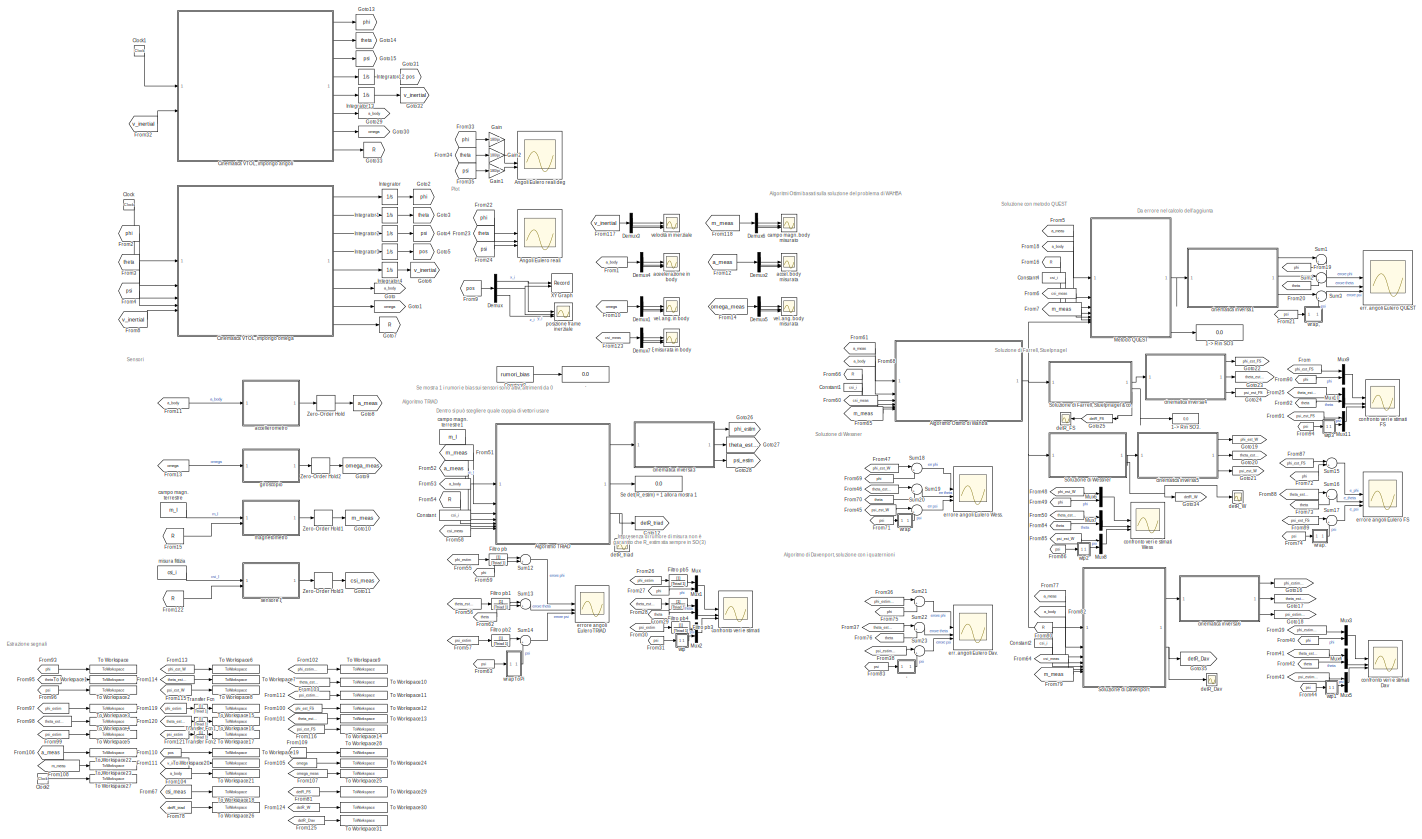
[diagram: root canvas - part 1/1, most of the canvas]
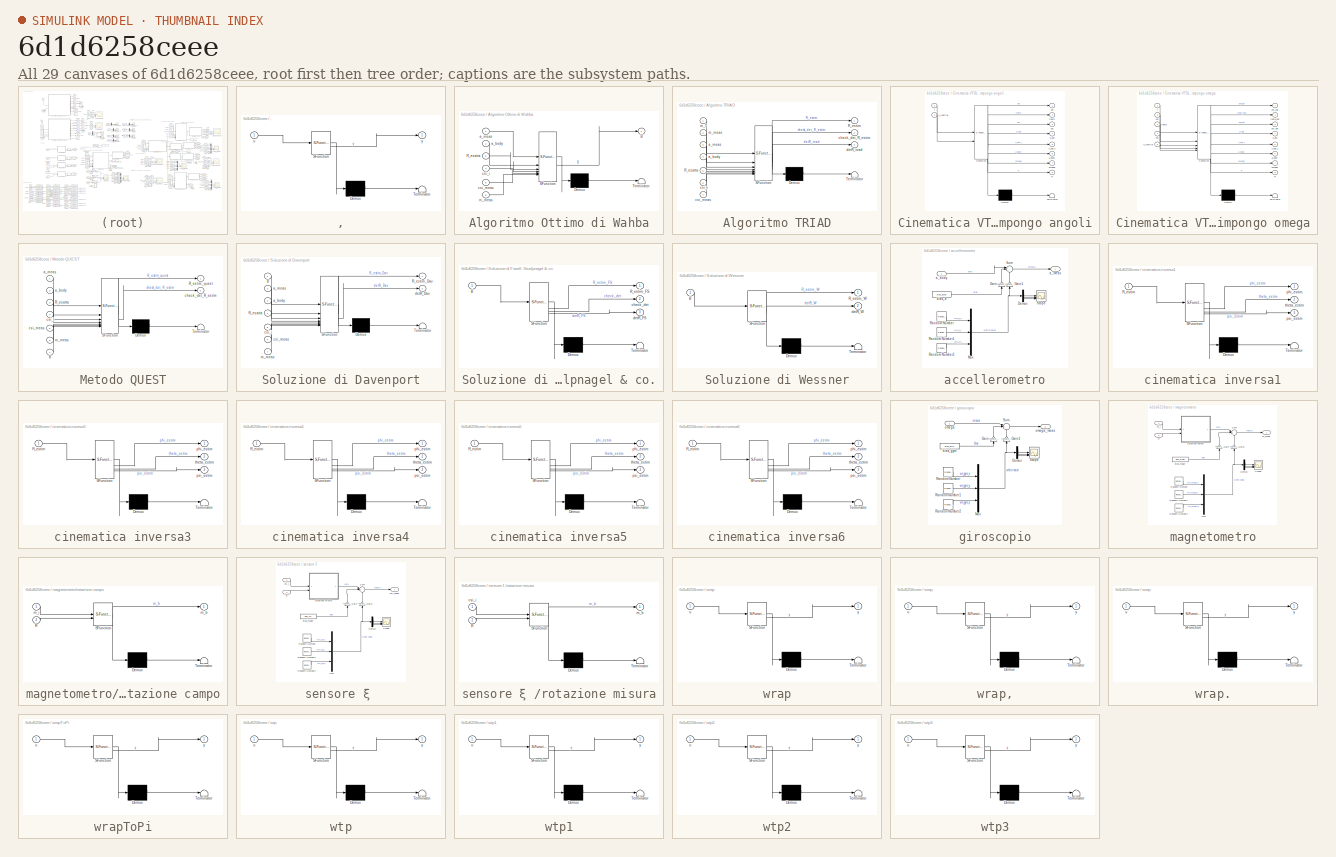
[diagram: thumbnail index - all 29 canvases of the model, root first then tree order]
MODEL slx_6d1d6258ceee
KIND model
CONFIG AbsTol = auto
CONFIG EnableMultiTasking = off
CONFIG FixedStep = 1e-6
CONFIG MaxStep = auto
CONFIG MinStep = auto
CONFIG RelTol = 1e-4
CONFIG SampleTimeConstraint = Unconstrained
CONFIG SolverName = VariableStepAuto
CONFIG StartTime = 0.0
CONFIG StopTime = time_max
BLOCK [SubSystem] ,
  ErrorFcn = Stateflow.Translate.translate
  LibrarySourceBlock = simulink/User-Defined\nFunctions/MATLAB Function
  PermitHierarchicalResolution = ExplicitOnly
  SFBlockType = MATLAB Function
  TreatAsAtomicUnit = on
BLOCK [Demux] ,/ Demux 
  Outputs = 1
BLOCK [S-Function] ,/ SFunction 
  EnableBusSupport = on
  FunctionName = sf_sfun
  PortCounts = [1 2]
  SFcnIsStateOwnerBlock = off
  SFunctionDeploymentMode = off
  Tag = Stateflow S-Function 6
BLOCK [Terminator] ,/ Terminator 
BLOCK [Inport] ,/u
BLOCK [Outport] ,/y
BLOCK [Display] .
  Decimation = 1
BLOCK [Display] 1-> R in SO3
  Commented = on
  Decimation = 1
  NameLocation = right
BLOCK [Display] 1-> R in SO3.
  Decimation = 1
  NameLocation = right
BLOCK [SubSystem] Algoritmo Ottimo di Wahba
  ErrorFcn = Stateflow.Translate.translate
  LibrarySourceBlock = simulink/User-Defined\nFunctions/MATLAB Function
  PermitHierarchicalResolution = ExplicitOnly
  SFBlockType = MATLAB Function
  TreatAsAtomicUnit = on
BLOCK [Demux] Algoritmo Ottimo di Wahba/ Demux 
  Outputs = 1
BLOCK [S-Function] Algoritmo Ottimo di Wahba/ SFunction 
  EnableBusSupport = on
  FunctionName = sf_sfun
  Parameters = k_accel,k_csi,k_magn,m_I
  PortCounts = [6 2]
  SFcnIsStateOwnerBlock = off
  SFunctionDeploymentMode = off
  Tag = Stateflow S-Function 12
BLOCK [Terminator] Algoritmo Ottimo di Wahba/ Terminator 
BLOCK [Outport] Algoritmo Ottimo di Wahba/B
BLOCK [Inport] Algoritmo Ottimo di Wahba/R_esatta
  Port = 3
BLOCK [Inport] Algoritmo Ottimo di Wahba/a_body
  Port = 2
BLOCK [Inport] Algoritmo Ottimo di Wahba/a_meas
BLOCK [Inport] Algoritmo Ottimo di Wahba/csi_i
  Port = 4
BLOCK [Inport] Algoritmo Ottimo di Wahba/csi_meas
  Port = 5
BLOCK [Inport] Algoritmo Ottimo di Wahba/m_meas
  Port = 6
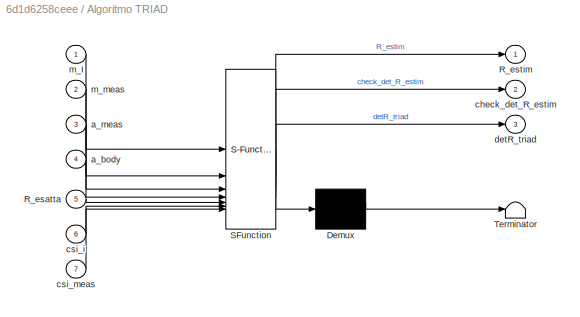
BLOCK [SubSystem] Algoritmo TRIAD
  ErrorFcn = Stateflow.Translate.translate
  LibrarySourceBlock = simulink/User-Defined\nFunctions/MATLAB Function
  PermitHierarchicalResolution = ExplicitOnly
  SFBlockType = MATLAB Function
  TreatAsAtomicUnit = on
BLOCK [Demux] Algoritmo TRIAD/ Demux 
  Outputs = 1
BLOCK [S-Function] Algoritmo TRIAD/ SFunction 
  EnableBusSupport = on
  FunctionName = sf_sfun
  PortCounts = [7 4]
  SFcnIsStateOwnerBlock = off
  SFunctionDeploymentMode = off
  Tag = Stateflow S-Function 10
BLOCK [Terminator] Algoritmo TRIAD/ Terminator 
BLOCK [Inport] Algoritmo TRIAD/R_esatta
  Port = 5
BLOCK [Outport] Algoritmo TRIAD/R_estim
BLOCK [Inport] Algoritmo TRIAD/a_body
  Port = 4
BLOCK [Inport] Algoritmo TRIAD/a_meas
  Port = 3
BLOCK [Outport] Algoritmo TRIAD/check_det_R_estim
  Port = 2
BLOCK [Inport] Algoritmo TRIAD/csi_i
  Port = 6
BLOCK [Inport] Algoritmo TRIAD/csi_meas
  Port = 7
BLOCK [Outport] Algoritmo TRIAD/detR_triad
  Port = 3
BLOCK [Inport] Algoritmo TRIAD/m_I
BLOCK [Inport] Algoritmo TRIAD/m_meas
  Port = 2
BLOCK [Scope] Angoli Eulero reali
  Floating = off
  NumInputPorts = 3
  ScopeSpecificationString = Simulink.scopes.TimeScopeBlockCfg('CurrentConfiguration', extmgr.ConfigurationSet(extmgr.Configuration('Core','General UI',true,'FigureColor',[1 1 1]),extmgr.Configuration('Core','Source UI',true),extmgr.Configuration('Sources','WiredSimulink',true,'DataLoggingVariableName','ScopeData1'),extmgr.Configuration('Visuals','Time Domain',true,'SerializedDisplays',{struct('MinYLimReal','-0.91697','MaxYLi...<+3166ch>
BLOCK [Scope] Angoli Eulero reali deg
  Floating = off
  NumInputPorts = 3
  ScopeSpecificationString = Simulink.scopes.TimeScopeBlockCfg('CurrentConfiguration', extmgr.ConfigurationSet(extmgr.Configuration('Core','General UI',true,'FigureColor',[1 1 1]),extmgr.Configuration('Core','Source UI',true),extmgr.Configuration('Sources','WiredSimulink',true,'DataLoggingVariableName','ScopeData1'),extmgr.Configuration('Visuals','Time Domain',true,'SerializedDisplays',{struct('MinYLimReal','-52.53829','MaxYL...<+3200ch>
BLOCK [SubSystem] Cinematica VTOL, impongo angoli
  Commented = on
  ErrorFcn = Stateflow.Translate.translate
  LibrarySourceBlock = simulink/User-Defined\nFunctions/MATLAB Function
  PermitHierarchicalResolution = ExplicitOnly
  SFBlockType = MATLAB Function
  TreatAsAtomicUnit = on
BLOCK [Demux] Cinematica VTOL, impongo angoli/ Demux 
  Outputs = 1
BLOCK [S-Function] Cinematica VTOL, impongo angoli/ SFunction 
  EnableBusSupport = on
  FunctionName = sf_sfun
  Parameters = Phi1,Phi2,Phi3,Psi1,Psi2,Psi3,Theta1,Theta2,Theta3,e3,g,phi_0,psi_0,theta_0,w_phi1,w_phi2,w_phi3,w_psi1,w_psi2,w_psi3,w_theta1,w_theta2,w_theta3
  PortCounts = [2 9]
  SFcnIsStateOwnerBlock = off
  SFunctionDeploymentMode = off
  Tag = Stateflow S-Function 20
BLOCK [Terminator] Cinematica VTOL, impongo angoli/ Terminator 
BLOCK [Outport] Cinematica VTOL, impongo angoli/R
  Port = 8
BLOCK [Outport] Cinematica VTOL, impongo angoli/a_body
  Port = 6
BLOCK [Outport] Cinematica VTOL, impongo angoli/omega
  Port = 7
BLOCK [Outport] Cinematica VTOL, impongo angoli/p_dot
  Port = 4
BLOCK [Outport] Cinematica VTOL, impongo angoli/phi
BLOCK [Outport] Cinematica VTOL, impongo angoli/psi
  Port = 3
BLOCK [Inport] Cinematica VTOL, impongo angoli/t
BLOCK [Outport] Cinematica VTOL, impongo angoli/theta
  Port = 2
BLOCK [Outport] Cinematica VTOL, impongo angoli/v_dot_i
  Port = 5
BLOCK [Inport] Cinematica VTOL, impongo angoli/v_inertial
  Port = 2
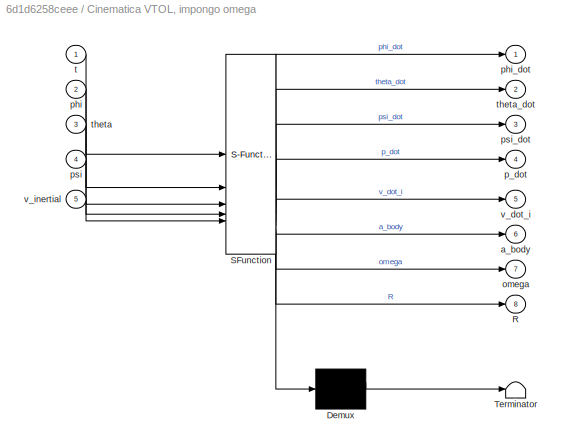
BLOCK [SubSystem] Cinematica VTOL, impongo omega
  ErrorFcn = Stateflow.Translate.translate
  LibrarySourceBlock = simulink/User-Defined\nFunctions/MATLAB Function
  PermitHierarchicalResolution = ExplicitOnly
  SFBlockType = MATLAB Function
  TreatAsAtomicUnit = on
BLOCK [Demux] Cinematica VTOL, impongo omega/ Demux 
  Outputs = 1
BLOCK [S-Function] Cinematica VTOL, impongo omega/ SFunction 
  EnableBusSupport = on
  FunctionName = sf_sfun
  Parameters = Omega11,Omega12,Omega13,Omega21,Omega22,Omega23,Omega31,Omega32,Omega33,e3,g,w_11,w_12,w_13,w_21,w_22,w_23,w_31,w_32,w_33
  PortCounts = [5 9]
  SFcnIsStateOwnerBlock = off
  SFunctionDeploymentMode = off
  Tag = Stateflow S-Function 25
BLOCK [Terminator] Cinematica VTOL, impongo omega/ Terminator 
BLOCK [Outport] Cinematica VTOL, impongo omega/R
  Port = 8
BLOCK [Outport] Cinematica VTOL, impongo omega/a_body
  Port = 6
BLOCK [Outport] Cinematica VTOL, impongo omega/omega
  Port = 7
BLOCK [Outport] Cinematica VTOL, impongo omega/p_dot
  Port = 4
BLOCK [Inport] Cinematica VTOL, impongo omega/phi
  Port = 2
BLOCK [Outport] Cinematica VTOL, impongo omega/phi_dot
BLOCK [Inport] Cinematica VTOL, impongo omega/psi
  Port = 4
BLOCK [Outport] Cinematica VTOL, impongo omega/psi_dot
  Port = 3
BLOCK [Inport] Cinematica VTOL, impongo omega/t
BLOCK [Inport] Cinematica VTOL, impongo omega/theta
  Port = 3
BLOCK [Outport] Cinematica VTOL, impongo omega/theta_dot
  Port = 2
BLOCK [Outport] Cinematica VTOL, impongo omega/v_dot_i
  Port = 5
BLOCK [Inport] Cinematica VTOL, impongo omega/v_inertial
  Port = 5
BLOCK [Clock] Clock
BLOCK [Clock] Clock1
  Commented = on
BLOCK [Clock] Clock2
BLOCK [Constant] Constant
  Value = csi_i
BLOCK [Constant] Constant1
  Value = csi_i
BLOCK [Constant] Constant2
  Value = csi_i
BLOCK [Constant] Constant3
  Value = rumori_bias
BLOCK [Constant] Constant4
  Commented = on
  Value = csi_i
BLOCK [Demux] Demux
  Outputs = 3
BLOCK [Demux] Demux1
  Outputs = 3
BLOCK [Demux] Demux2
  Outputs = 3
BLOCK [Demux] Demux3
  Outputs = 3
BLOCK [Demux] Demux4
  Outputs = 3
BLOCK [Demux] Demux5
  Outputs = 3
BLOCK [Demux] Demux6
  Outputs = 3
BLOCK [Demux] Demux7
  Outputs = 3
BLOCK [TransferFcn] Filtro pb
  Commented = through
  Denominator = [Ttriad 1]
  NameLocation = top
BLOCK [TransferFcn] Filtro pb1
  Commented = through
  Denominator = [Ttriad 1]
  NameLocation = top
BLOCK [TransferFcn] Filtro pb2
  Commented = through
  Denominator = [Ttriad 1]
  NameLocation = top
BLOCK [TransferFcn] Filtro pb3
  Commented = through
  Denominator = [Ttriad 1]
  NameLocation = top
BLOCK [TransferFcn] Filtro pb4
  Commented = through
  Denominator = [Ttriad 1]
  NameLocation = top
BLOCK [TransferFcn] Filtro pb5
  Commented = through
  Denominator = [Ttriad 1]
  NameLocation = top
BLOCK [From] From
  GotoTag = phi_est_FS
BLOCK [From] From1
  GotoTag = a_body
BLOCK [From] From10
  GotoTag = omega
BLOCK [From] From100
  GotoTag = phi_est_FS
BLOCK [From] From101
  GotoTag = theta_est_FS
BLOCK [From] From102
  GotoTag = phi_estim_D
BLOCK [From] From103
  GotoTag = theta_estim_D
BLOCK [From] From104
  GotoTag = a_body
BLOCK [From] From105
  GotoTag = omega
BLOCK [From] From106
  GotoTag = a_meas
BLOCK [From] From107
  GotoTag = omega_meas
BLOCK [From] From108
  GotoTag = m_meas
BLOCK [From] From109
  GotoTag = R
BLOCK [From] From11
  GotoTag = a_body
BLOCK [From] From110
  GotoTag = pos
BLOCK [From] From111
  GotoTag = v_inertial
BLOCK [From] From112
  GotoTag = psi_estim_D
BLOCK [From] From113
  GotoTag = phi_est_W
BLOCK [From] From114
  GotoTag = theta_est_W
BLOCK [From] From115
  GotoTag = psi_est_W
BLOCK [From] From116
  GotoTag = psi_est_FS
BLOCK [From] From117
  GotoTag = v_inertial
BLOCK [From] From118
  GotoTag = m_meas
BLOCK [From] From119
  GotoTag = phi_estim
BLOCK [From] From12
  GotoTag = a_meas
BLOCK [From] From120
  GotoTag = theta_estim
BLOCK [From] From121
  GotoTag = psi_estim
BLOCK [From] From122
  GotoTag = R
BLOCK [From] From123
  GotoTag = csi_meas
BLOCK [From] From124
  GotoTag = detR_W
BLOCK [From] From125
  GotoTag = detR_Dav
BLOCK [From] From13
  GotoTag = omega
BLOCK [From] From14
  GotoTag = omega_meas
BLOCK [From] From15
  GotoTag = R
BLOCK [From] From16
  Commented = on
  GotoTag = R
BLOCK [From] From18
  Commented = on
  GotoTag = a_body
BLOCK [From] From19
  Commented = on
  GotoTag = phi
BLOCK [From] From2
  GotoTag = phi
BLOCK [From] From20
  Commented = on
  GotoTag = theta
BLOCK [From] From21
  Commented = on
  GotoTag = psi
BLOCK [From] From22
  GotoTag = phi
BLOCK [From] From23
  GotoTag = theta
BLOCK [From] From24
  GotoTag = psi
BLOCK [From] From25
  GotoTag = theta_est_FS
BLOCK [From] From26
  GotoTag = phi_estim
BLOCK [From] From27
  GotoTag = phi
BLOCK [From] From28
  GotoTag = theta_estim
BLOCK [From] From29
  GotoTag = theta
BLOCK [From] From3
  GotoTag = theta
BLOCK [From] From30
  GotoTag = psi_estim
BLOCK [From] From31
  GotoTag = psi
BLOCK [From] From32
  Commented = on
  GotoTag = v_inertial
BLOCK [From] From33
  GotoTag = phi
BLOCK [From] From34
  GotoTag = theta
BLOCK [From] From35
  GotoTag = psi
BLOCK [From] From36
  GotoTag = phi_estim_D
BLOCK [From] From37
  GotoTag = theta_estim_D
BLOCK [From] From38
  GotoTag = psi_estim_D
BLOCK [From] From39
  GotoTag = phi_estim_D
BLOCK [From] From4
  GotoTag = psi
BLOCK [From] From40
  GotoTag = phi
BLOCK [From] From41
  GotoTag = theta_estim_D
BLOCK [From] From42
  GotoTag = theta
BLOCK [From] From43
  GotoTag = psi_estim_D
BLOCK [From] From44
  GotoTag = psi
BLOCK [From] From45
  GotoTag = psi_est_W
BLOCK [From] From46
  GotoTag = theta_est_W
BLOCK [From] From47
  GotoTag = phi_est_W
BLOCK [From] From48
  GotoTag = phi_est_W
BLOCK [From] From49
  GotoTag = phi
BLOCK [From] From5
  GotoTag = a_meas
BLOCK [From] From50
  GotoTag = theta_est_W
BLOCK [From] From51
  GotoTag = m_meas
BLOCK [From] From52
  GotoTag = a_meas
BLOCK [From] From53
  GotoTag = a_body
BLOCK [From] From54
  GotoTag = R
BLOCK [From] From55
  GotoTag = phi_estim
BLOCK [From] From56
  GotoTag = theta_estim
BLOCK [From] From57
  GotoTag = psi_estim
BLOCK [From] From58
  GotoTag = csi_meas
BLOCK [From] From59
  GotoTag = phi
BLOCK [From] From6
  Commented = on
  GotoTag = csi_meas
BLOCK [From] From60
  GotoTag = csi_meas
BLOCK [From] From61
  GotoTag = a_meas
BLOCK [From] From62
  GotoTag = theta
BLOCK [From] From63
  GotoTag = psi
BLOCK [From] From64
  GotoTag = csi_meas
BLOCK [From] From65
  GotoTag = m_meas
BLOCK [From] From66
  GotoTag = R
BLOCK [From] From67
  GotoTag = csi_meas
BLOCK [From] From68
  GotoTag = a_body
BLOCK [From] From69
  GotoTag = phi
BLOCK [From] From7
  Commented = on
  GotoTag = m_meas
BLOCK [From] From70
  GotoTag = theta
BLOCK [From] From71
  GotoTag = psi
BLOCK [From] From72
  GotoTag = phi
BLOCK [From] From73
  GotoTag = theta
BLOCK [From] From74
  GotoTag = psi
BLOCK [From] From75
  GotoTag = phi
BLOCK [From] From76
  GotoTag = theta
BLOCK [From] From77
  GotoTag = a_meas
BLOCK [From] From78
  GotoTag = detR_triad
BLOCK [From] From79
  GotoTag = m_meas
BLOCK [From] From8
  GotoTag = v_inertial
BLOCK [From] From80
  GotoTag = R
BLOCK [From] From81
  GotoTag = detR_FS
  NameLocation = top
BLOCK [From] From82
  GotoTag = a_body
BLOCK [From] From83
  GotoTag = psi
BLOCK [From] From84
  GotoTag = theta
BLOCK [From] From85
  GotoTag = psi_est_W
BLOCK [From] From86
  GotoTag = psi
BLOCK [From] From87
  GotoTag = phi_est_FS
BLOCK [From] From88
  GotoTag = theta_est_FS
BLOCK [From] From89
  GotoTag = psi_est_FS
BLOCK [From] From9
  GotoTag = pos
BLOCK [From] From90
  GotoTag = phi
BLOCK [From] From91
  GotoTag = psi_est_FS
BLOCK [From] From92
  GotoTag = theta
BLOCK [From] From93
  GotoTag = phi
BLOCK [From] From94
  GotoTag = psi
BLOCK [From] From95
  GotoTag = theta
BLOCK [From] From96
  GotoTag = psi
BLOCK [From] From97
  GotoTag = phi_estim
BLOCK [From] From98
  GotoTag = theta_estim
BLOCK [From] From99
  GotoTag = psi_estim
BLOCK [Gain] Gain
  Gain = 180/pi
BLOCK [Gain] Gain1
  Gain = 180/pi
BLOCK [Gain] Gain2
  Gain = 180/pi
BLOCK [Goto] Goto
  GotoTag = a_body
BLOCK [Goto] Goto1
  GotoTag = omega
BLOCK [Goto] Goto10
  GotoTag = m_meas
BLOCK [Goto] Goto11
  GotoTag = csi_meas
BLOCK [Goto] Goto12
  GotoTag = detR_triad
BLOCK [Goto] Goto13
  Commented = on
  GotoTag = phi
BLOCK [Goto] Goto14
  Commented = on
  GotoTag = theta
BLOCK [Goto] Goto15
  Commented = on
  GotoTag = psi
BLOCK [Goto] Goto16
  GotoTag = phi_estim_D
BLOCK [Goto] Goto17
  GotoTag = theta_estim_D
BLOCK [Goto] Goto18
  GotoTag = psi_estim_D
BLOCK [Goto] Goto19
  GotoTag = phi_est_W
BLOCK [Goto] Goto2
  GotoTag = phi
BLOCK [Goto] Goto20
  GotoTag = theta_est_W
BLOCK [Goto] Goto21
  GotoTag = psi_est_W
BLOCK [Goto] Goto22
  GotoTag = phi_est_FS
BLOCK [Goto] Goto23
  GotoTag = theta_est_FS
BLOCK [Goto] Goto24
  GotoTag = psi_est_FS
BLOCK [Goto] Goto25
  GotoTag = detR_FS
  NameLocation = top
BLOCK [Goto] Goto26
  GotoTag = phi_estim
BLOCK [Goto] Goto27
  GotoTag = theta_estim
BLOCK [Goto] Goto28
  GotoTag = psi_estim
BLOCK [Goto] Goto29
  Commented = on
  GotoTag = a_body
BLOCK [Goto] Goto3
  GotoTag = theta
BLOCK [Goto] Goto30
  Commented = on
  GotoTag = omega
BLOCK [Goto] Goto31
  Commented = on
  GotoTag = pos
BLOCK [Goto] Goto32
  Commented = on
  GotoTag = v_inertial
BLOCK [Goto] Goto33
  Commented = on
  GotoTag = R
BLOCK [Goto] Goto34
  GotoTag = detR_W
BLOCK [Goto] Goto35
  GotoTag = detR_Dav
BLOCK [Goto] Goto4
  GotoTag = psi
BLOCK [Goto] Goto5
  GotoTag = pos
BLOCK [Goto] Goto6
  GotoTag = v_inertial
BLOCK [Goto] Goto7
  GotoTag = R
BLOCK [Goto] Goto8
  GotoTag = a_meas
BLOCK [Goto] Goto9
  GotoTag = omega_meas
BLOCK [Integrator] Integrator
  InitialCondition = phi_0
BLOCK [Integrator] Integrator1
  InitialCondition = theta_0
BLOCK [Integrator] Integrator12
  Commented = on
  InitialCondition = pos_0
BLOCK [Integrator] Integrator13
  Commented = on
  InitialCondition = vel_0
BLOCK [Integrator] Integrator2
  InitialCondition = psi_0
BLOCK [Integrator] Integrator3
  InitialCondition = pos_0
BLOCK [Integrator] Integrator4
  InitialCondition = vel_0
BLOCK [SubSystem] Metodo QUEST
  Commented = on
  ErrorFcn = Stateflow.Translate.translate
  LibrarySourceBlock = simulink/User-Defined\nFunctions/MATLAB Function
  PermitHierarchicalResolution = ExplicitOnly
  SFBlockType = MATLAB Function
  TreatAsAtomicUnit = on
BLOCK [Demux] Metodo QUEST/ Demux 
  Outputs = 1
BLOCK [S-Function] Metodo QUEST/ SFunction 
  EnableBusSupport = on
  FunctionName = sf_sfun
  Parameters = k_accel,k_csi,k_magn,m_I
  PortCounts = [7 3]
  SFcnIsStateOwnerBlock = off
  SFunctionDeploymentMode = off
  Tag = Stateflow S-Function 3
BLOCK [Terminator] Metodo QUEST/ Terminator 
BLOCK [Inport] Metodo QUEST/B
  Port = 7
BLOCK [Inport] Metodo QUEST/R_esatta
  Port = 3
BLOCK [Outport] Metodo QUEST/R_estim_quest
BLOCK [Inport] Metodo QUEST/a_body
  Port = 2
BLOCK [Inport] Metodo QUEST/a_meas
BLOCK [Outport] Metodo QUEST/check_det_R_estim
  Port = 2
BLOCK [Inport] Metodo QUEST/csi_i
  Port = 4
BLOCK [Inport] Metodo QUEST/csi_meas
  Port = 5
BLOCK [Inport] Metodo QUEST/m_meas
  Port = 6
BLOCK [Mux] Mux
  DisplayOption = bar
  Inputs = 2
BLOCK [Mux] Mux1
  DisplayOption = bar
  Inputs = 2
BLOCK [Mux] Mux10
  DisplayOption = bar
  Inputs = 2
BLOCK [Mux] Mux11
  DisplayOption = bar
  Inputs = 2
BLOCK [Mux] Mux2
  DisplayOption = bar
  Inputs = 2
BLOCK [Mux] Mux3
  DisplayOption = bar
  Inputs = 2
BLOCK [Mux] Mux4
  DisplayOption = bar
  Inputs = 2
BLOCK [Mux] Mux5
  DisplayOption = bar
  Inputs = 2
BLOCK [Mux] Mux6
  DisplayOption = bar
  Inputs = 2
BLOCK [Mux] Mux7
  DisplayOption = bar
  Inputs = 2
BLOCK [Mux] Mux8
  DisplayOption = bar
  Inputs = 2
BLOCK [Mux] Mux9
  DisplayOption = bar
  Inputs = 2
BLOCK [Display] Se det(R_estim) = 1 allora mostra 1
  Decimation = 1
BLOCK [SubSystem] Soluzione di Davenport
  ErrorFcn = Stateflow.Translate.translate
  LibrarySourceBlock = simulink/User-Defined\nFunctions/MATLAB Function
  PermitHierarchicalResolution = ExplicitOnly
  SFBlockType = MATLAB Function
  TreatAsAtomicUnit = on
BLOCK [Demux] Soluzione di Davenport/ Demux 
  Outputs = 1
BLOCK [S-Function] Soluzione di Davenport/ SFunction 
  EnableBusSupport = on
  FunctionName = sf_sfun
  Parameters = flag,index,k_accel,k_csi,k_magn,m_I
  PortCounts = [7 3]
  SFcnIsStateOwnerBlock = off
  SFunctionDeploymentMode = off
  Tag = Stateflow S-Function 17
BLOCK [Terminator] Soluzione di Davenport/ Terminator 
BLOCK [Inport] Soluzione di Davenport/B
BLOCK [Inport] Soluzione di Davenport/R_esatta
  Port = 4
BLOCK [Outport] Soluzione di Davenport/R_estim_Dav
BLOCK [Inport] Soluzione di Davenport/a_body
  Port = 3
BLOCK [Inport] Soluzione di Davenport/a_meas
  Port = 2
BLOCK [Inport] Soluzione di Davenport/csi_i
  Port = 5
BLOCK [Inport] Soluzione di Davenport/csi_meas
  Port = 6
BLOCK [Outport] Soluzione di Davenport/detR_Dav
  Port = 2
BLOCK [Inport] Soluzione di Davenport/m_meas
  Port = 7
BLOCK [SubSystem] Soluzione di Farrell, Stuelpnagel & co.
  ErrorFcn = Stateflow.Translate.translate
  LibrarySourceBlock = simulink/User-Defined\nFunctions/MATLAB Function
  PermitHierarchicalResolution = ExplicitOnly
  SFBlockType = MATLAB Function
  TreatAsAtomicUnit = on
BLOCK [Demux] Soluzione di Farrell, Stuelpnagel & co./ Demux 
  Outputs = 1
BLOCK [S-Function] Soluzione di Farrell, Stuelpnagel & co./ SFunction 
  EnableBusSupport = on
  FunctionName = sf_sfun
  PortCounts = [1 4]
  SFcnIsStateOwnerBlock = off
  SFunctionDeploymentMode = off
  Tag = Stateflow S-Function 13
BLOCK [Terminator] Soluzione di Farrell, Stuelpnagel & co./ Terminator 
BLOCK [Inport] Soluzione di Farrell, Stuelpnagel & co./B
BLOCK [Outport] Soluzione di Farrell, Stuelpnagel & co./R_estim_FS
BLOCK [Outport] Soluzione di Farrell, Stuelpnagel & co./check_det
  Port = 2
BLOCK [Outport] Soluzione di Farrell, Stuelpnagel & co./detR_FS
  Port = 3
BLOCK [SubSystem] Soluzione di Wessner
  ErrorFcn = Stateflow.Translate.translate
  LibrarySourceBlock = simulink/User-Defined\nFunctions/MATLAB Function
  PermitHierarchicalResolution = ExplicitOnly
  SFBlockType = MATLAB Function
  TreatAsAtomicUnit = on
BLOCK [Demux] Soluzione di Wessner/ Demux 
  Outputs = 1
BLOCK [S-Function] Soluzione di Wessner/ SFunction 
  EnableBusSupport = on
  FunctionName = sf_sfun
  PortCounts = [1 3]
  SFcnIsStateOwnerBlock = off
  SFunctionDeploymentMode = off
  Tag = Stateflow S-Function 15
BLOCK [Terminator] Soluzione di Wessner/ Terminator 
BLOCK [Inport] Soluzione di Wessner/B
BLOCK [Outport] Soluzione di Wessner/R_estim_W
BLOCK [Outport] Soluzione di Wessner/detR_W
  Port = 2
BLOCK [Sum] Sum1
  Commented = on
  Inputs = |+-
BLOCK [Sum] Sum12
  Inputs = |+-
  NameLocation = top
BLOCK [Sum] Sum13
  Inputs = |+-
  NameLocation = top
BLOCK [Sum] Sum14
  Inputs = |+-
  NameLocation = top
BLOCK [Sum] Sum15
  Inputs = |+-
BLOCK [Sum] Sum16
  Inputs = |+-
  NameLocation = top
BLOCK [Sum] Sum17
  Inputs = |+-
  NameLocation = top
BLOCK [Sum] Sum18
  Inputs = |+-
BLOCK [Sum] Sum19
  Inputs = |+-
  NameLocation = top
BLOCK [Sum] Sum2
  Commented = on
  Inputs = |+-
  NameLocation = top
BLOCK [Sum] Sum20
  Inputs = |+-
  NameLocation = top
BLOCK [Sum] Sum21
  Inputs = |+-
BLOCK [Sum] Sum22
  Inputs = |+-
  NameLocation = top
BLOCK [Sum] Sum23
  Inputs = |+-
  NameLocation = top
BLOCK [Sum] Sum3
  Commented = on
  Inputs = |+-
  NameLocation = top
BLOCK [ToWorkspace] To Workspace
  FixptAsFi = on
  MaxDataPoints = inf
  SampleTime = -1
  SaveFormat = Timeseries
  VariableName = phi
BLOCK [ToWorkspace] To Workspace1
  FixptAsFi = on
  MaxDataPoints = inf
  SampleTime = -1
  SaveFormat = Timeseries
  VariableName = theta
BLOCK [ToWorkspace] To Workspace10
  FixptAsFi = on
  MaxDataPoints = inf
  SampleTime = -1
  SaveFormat = Timeseries
  VariableName = theta_est_D
BLOCK [ToWorkspace] To Workspace11
  FixptAsFi = on
  MaxDataPoints = inf
  SampleTime = -1
  SaveFormat = Timeseries
  VariableName = psi_est_D
BLOCK [ToWorkspace] To Workspace12
  FixptAsFi = on
  MaxDataPoints = inf
  SampleTime = -1
  SaveFormat = Timeseries
  VariableName = phi_est_FS
BLOCK [ToWorkspace] To Workspace13
  FixptAsFi = on
  MaxDataPoints = inf
  SampleTime = -1
  SaveFormat = Timeseries
  VariableName = theta_est_FS
BLOCK [ToWorkspace] To Workspace14
  FixptAsFi = on
  MaxDataPoints = inf
  SampleTime = -1
  SaveFormat = Timeseries
  VariableName = psi_est_FS
BLOCK [ToWorkspace] To Workspace15
  FixptAsFi = on
  MaxDataPoints = inf
  SampleTime = -1
  SaveFormat = Timeseries
  VariableName = phi_Triad_pb
BLOCK [ToWorkspace] To Workspace16
  FixptAsFi = on
  MaxDataPoints = inf
  SampleTime = -1
  SaveFormat = Timeseries
  VariableName = theta_Triad_pb
BLOCK [ToWorkspace] To Workspace17
  FixptAsFi = on
  MaxDataPoints = inf
  SampleTime = -1
  SaveFormat = Timeseries
  VariableName = psi_Triad_pb
BLOCK [ToWorkspace] To Workspace18
  FixptAsFi = on
  MaxDataPoints = inf
  SampleTime = -1
  SaveFormat = Timeseries
  VariableName = csi_meas
BLOCK [ToWorkspace] To Workspace19
  FixptAsFi = on
  MaxDataPoints = inf
  SampleTime = -1
  SaveFormat = Timeseries
  VariableName = pos_inertial
BLOCK [ToWorkspace] To Workspace2
  FixptAsFi = on
  MaxDataPoints = inf
  SampleTime = -1
  SaveFormat = Timeseries
  VariableName = psi
BLOCK [ToWorkspace] To Workspace20
  FixptAsFi = on
  MaxDataPoints = inf
  SampleTime = -1
  SaveFormat = Timeseries
  VariableName = vel_inertial
BLOCK [ToWorkspace] To Workspace21
  FixptAsFi = on
  MaxDataPoints = inf
  SampleTime = -1
  SaveFormat = Timeseries
  VariableName = a_body
BLOCK [ToWorkspace] To Workspace22
  FixptAsFi = on
  MaxDataPoints = inf
  SampleTime = -1
  SaveFormat = Timeseries
  VariableName = a_meas
BLOCK [ToWorkspace] To Workspace23
  FixptAsFi = on
  MaxDataPoints = inf
  SampleTime = -1
  SaveFormat = Timeseries
  VariableName = m_meas
BLOCK [ToWorkspace] To Workspace24
  FixptAsFi = on
  MaxDataPoints = inf
  SampleTime = -1
  SaveFormat = Timeseries
  VariableName = omega
BLOCK [ToWorkspace] To Workspace25
  FixptAsFi = on
  MaxDataPoints = inf
  SampleTime = -1
  SaveFormat = Timeseries
  VariableName = omega_meas
BLOCK [ToWorkspace] To Workspace26
  FixptAsFi = on
  MaxDataPoints = inf
  SampleTime = -1
  SaveFormat = Timeseries
  VariableName = detR_triad
BLOCK [ToWorkspace] To Workspace27
  FixptAsFi = on
  MaxDataPoints = inf
  SampleTime = -1
  VariableName = time
BLOCK [ToWorkspace] To Workspace28
  FixptAsFi = on
  MaxDataPoints = inf
  SampleTime = -1
  VariableName = R_vera
BLOCK [ToWorkspace] To Workspace29
  FixptAsFi = on
  MaxDataPoints = inf
  SampleTime = -1
  SaveFormat = Timeseries
  VariableName = detR_FS
BLOCK [ToWorkspace] To Workspace3
  FixptAsFi = on
  MaxDataPoints = inf
  SampleTime = -1
  SaveFormat = Timeseries
  VariableName = phi_Triad
BLOCK [ToWorkspace] To Workspace30
  FixptAsFi = on
  MaxDataPoints = inf
  SampleTime = -1
  SaveFormat = Timeseries
  VariableName = detR_W
BLOCK [ToWorkspace] To Workspace31
  FixptAsFi = on
  MaxDataPoints = inf
  SampleTime = -1
  SaveFormat = Timeseries
  VariableName = detR_Dav
BLOCK [ToWorkspace] To Workspace4
  FixptAsFi = on
  MaxDataPoints = inf
  SampleTime = -1
  SaveFormat = Timeseries
  VariableName = theta_Triad
BLOCK [ToWorkspace] To Workspace5
  FixptAsFi = on
  MaxDataPoints = inf
  SampleTime = -1
  SaveFormat = Timeseries
  VariableName = psi_Triad
BLOCK [ToWorkspace] To Workspace6
  FixptAsFi = on
  MaxDataPoints = inf
  SampleTime = -1
  SaveFormat = Timeseries
  VariableName = phi_est_W
BLOCK [ToWorkspace] To Workspace7
  FixptAsFi = on
  MaxDataPoints = inf
  SampleTime = -1
  SaveFormat = Timeseries
  VariableName = theta_est_W
BLOCK [ToWorkspace] To Workspace8
  FixptAsFi = on
  MaxDataPoints = inf
  SampleTime = -1
  SaveFormat = Timeseries
  VariableName = psi_est_W
BLOCK [ToWorkspace] To Workspace9
  FixptAsFi = on
  MaxDataPoints = inf
  SampleTime = -1
  SaveFormat = Timeseries
  VariableName = phi_est_D
BLOCK [TransferFcn] Transfer Fcn
  Denominator = [Ttriad 1]
BLOCK [TransferFcn] Transfer Fcn1
  Denominator = [Ttriad 1]
BLOCK [TransferFcn] Transfer Fcn2
  Denominator = [Ttriad 1]
BLOCK [Record] XY Graph
  CompatibilityTag = XY
  FileSettingsInternal = {"entries":[{"content":{"excelSettings":{"content":{},"type":"Streamout.ExcelSettings"}},"type":"Streamout.FileSettingStorage","uuid":"477e70b2-955e-4b5a-84c2-a5f2bc9940fe"}],"packageUris":["http://schema.mathworks.com/mf0/streamout_blocks/R2020a"],"version":"1.0"}
  Layout = [1 1]
  SignalsInternal = {"entries":[{"content":{"signals":[{"content":{"blockPath":["Filtri_Statici/XY Graph"],"channel":[],"dimensions":[1,1],"domain":"Filtri_Statici/XY Graph","lineColor":"#a2142f","plots":[1],"port":1,"sid":[""],"signalID":3592,"signalName":"x_i"},"type":"RecordBlkView.Signal","uuid":"d6606014-7fdd-4c5b-a990-e5a37003c0d6"},{"content":{"blockPath":["Filtri_Statici/XY Graph"],"channel":[],"dimensions":[...<+383ch>
  VisualizationBindings = {"xyplotplugin":{"info":[{"series":[{"bindingParametersList":[{"parameter":"X-Axis","signalID":3592,"signalName":"x_i"},{"parameter":"Y-Axis","signalID":3596,"signalName":"y_i"}],"seriesID":16300}],"subplotID":1}]}}
BLOCK [ZeroOrderHold] Zero-Order Hold
  SampleTime = dt
BLOCK [ZeroOrderHold] Zero-Order Hold1
  SampleTime = dt
BLOCK [ZeroOrderHold] Zero-Order Hold2
  SampleTime = dt
BLOCK [ZeroOrderHold] Zero-Order Hold3
  SampleTime = dt
BLOCK [Scope] accel. body misurata
  Floating = off
  NumInputPorts = 3
  ScopeSpecificationString = Simulink.scopes.TimeScopeBlockCfg('CurrentConfiguration', extmgr.ConfigurationSet(extmgr.Configuration('Core','General UI',true,'FigureColor',[1 1 1]),extmgr.Configuration('Core','Source UI',true),extmgr.Configuration('Sources','WiredSimulink',true,'DataLoggingVariableName','ScopeData2'),extmgr.Configuration('Visuals','Time Domain',true,'SerializedDisplays',{struct('MinYLimReal','-2.93511','MaxYLi...<+3265ch>
BLOCK [SubSystem] accellerometro
BLOCK [Demux] accellerometro/Demux
  Outputs = 3
BLOCK [Gain] accellerometro/Gain
  Gain = rumori_bias
  NameLocation = right
BLOCK [Gain] accellerometro/Gain1
  Gain = rumori_bias
  NameLocation = right
BLOCK [Mux] accellerometro/Mux
  DisplayOption = bar
  Inputs = 3
BLOCK [RandomNumber] accellerometro/Random Number
  SampleTime = dt
  Seed = 1
  Variance = dev_std_a_x^2
BLOCK [RandomNumber] accellerometro/Random Number1
  SampleTime = dt
  Seed = 2
  Variance = dev_std_a_y^2
BLOCK [RandomNumber] accellerometro/Random Number2
  SampleTime = dt
  Seed = 3
  Variance = dev_std_a_z^2
BLOCK [Scope] accellerometro/Scope
  Floating = off
  NumInputPorts = 3
  ScopeSpecificationString = Simulink.scopes.TimeScopeBlockCfg('CurrentConfiguration', extmgr.ConfigurationSet(extmgr.Configuration('Core','General UI',true),extmgr.Configuration('Core','Source UI',true),extmgr.Configuration('Sources','WiredSimulink',true,'DataLoggingVariableName','ScopeData2'),extmgr.Configuration('Visuals','Time Domain',true,'SerializedDisplays',{struct('MinYLimReal','-0.54972','MaxYLimReal','0.59919','YLab...<+2742ch>
BLOCK [Sum] accellerometro/Sum
  Inputs = |+++
BLOCK [Inport] accellerometro/a_body
BLOCK [Outport] accellerometro/a_meas
BLOCK [Constant] accellerometro/bias_a
  Value = bias_accel
BLOCK [Scope] aceelerazione in body
  Floating = off
  NumInputPorts = 3
  ScopeSpecificationString = Simulink.scopes.TimeScopeBlockCfg('CurrentConfiguration', extmgr.ConfigurationSet(extmgr.Configuration('Core','General UI',true,'FigureColor',[1 1 1]),extmgr.Configuration('Core','Source UI',true),extmgr.Configuration('Sources','WiredSimulink',true,'DataLoggingVariableName','ScopeData3'),extmgr.Configuration('Visuals','Time Domain',true,'SerializedDisplays',{struct('MinYLimReal','-2.89538','MaxYLi...<+3227ch>
BLOCK [Scope] campo magn. body misurato
  Floating = off
  NumInputPorts = 3
  ScopeSpecificationString = Simulink.scopes.TimeScopeBlockCfg('CurrentConfiguration', extmgr.ConfigurationSet(extmgr.Configuration('Core','General UI',true,'FigureColor',[1 1 1]),extmgr.Configuration('Core','Source UI',true),extmgr.Configuration('Sources','WiredSimulink',true,'DataLoggingVariableName','ScopeData1'),extmgr.Configuration('Visuals','Time Domain',true,'SerializedDisplays',{struct('MinYLimReal','-0.43991','MaxYLi...<+3251ch>
BLOCK [Constant] campo magn. terrestre
  Value = m_I
BLOCK [Constant] campo magn. terrestre1
  NameLocation = top
  Value = m_I
BLOCK [SubSystem] cinematica inversa1
  Commented = on
  ErrorFcn = Stateflow.Translate.translate
  LibrarySourceBlock = simulink/User-Defined\nFunctions/MATLAB Function
  PermitHierarchicalResolution = ExplicitOnly
  SFBlockType = MATLAB Function
  TreatAsAtomicUnit = on
BLOCK [Demux] cinematica inversa1/ Demux 
  Outputs = 1
BLOCK [S-Function] cinematica inversa1/ SFunction 
  EnableBusSupport = on
  FunctionName = sf_sfun
  PortCounts = [1 4]
  SFcnIsStateOwnerBlock = off
  SFunctionDeploymentMode = off
  Tag = Stateflow S-Function 4
BLOCK [Terminator] cinematica inversa1/ Terminator 
BLOCK [Inport] cinematica inversa1/R_estim
BLOCK [Outport] cinematica inversa1/phi_estim
BLOCK [Outport] cinematica inversa1/psi_estim
  Port = 3
BLOCK [Outport] cinematica inversa1/theta_estim
  Port = 2
BLOCK [SubSystem] cinematica inversa3
  ErrorFcn = Stateflow.Translate.translate
  LibrarySourceBlock = simulink/User-Defined\nFunctions/MATLAB Function
  PermitHierarchicalResolution = ExplicitOnly
  SFBlockType = MATLAB Function
  TreatAsAtomicUnit = on
BLOCK [Demux] cinematica inversa3/ Demux 
  Outputs = 1
BLOCK [S-Function] cinematica inversa3/ SFunction 
  EnableBusSupport = on
  FunctionName = sf_sfun
  PortCounts = [1 4]
  SFcnIsStateOwnerBlock = off
  SFunctionDeploymentMode = off
  Tag = Stateflow S-Function 11
BLOCK [Terminator] cinematica inversa3/ Terminator 
BLOCK [Inport] cinematica inversa3/R_estim
BLOCK [Outport] cinematica inversa3/phi_estim
BLOCK [Outport] cinematica inversa3/psi_estim
  Port = 3
BLOCK [Outport] cinematica inversa3/theta_estim
  Port = 2
BLOCK [SubSystem] cinematica inversa4
  ErrorFcn = Stateflow.Translate.translate
  LibrarySourceBlock = simulink/User-Defined\nFunctions/MATLAB Function
  PermitHierarchicalResolution = ExplicitOnly
  SFBlockType = MATLAB Function
  TreatAsAtomicUnit = on
BLOCK [Demux] cinematica inversa4/ Demux 
  Outputs = 1
BLOCK [S-Function] cinematica inversa4/ SFunction 
  EnableBusSupport = on
  FunctionName = sf_sfun
  PortCounts = [1 4]
  SFcnIsStateOwnerBlock = off
  SFunctionDeploymentMode = off
  Tag = Stateflow S-Function 14
BLOCK [Terminator] cinematica inversa4/ Terminator 
BLOCK [Inport] cinematica inversa4/R_estim
BLOCK [Outport] cinematica inversa4/phi_estim
BLOCK [Outport] cinematica inversa4/psi_estim
  Port = 3
BLOCK [Outport] cinematica inversa4/theta_estim
  Port = 2
BLOCK [SubSystem] cinematica inversa5
  ErrorFcn = Stateflow.Translate.translate
  LibrarySourceBlock = simulink/User-Defined\nFunctions/MATLAB Function
  PermitHierarchicalResolution = ExplicitOnly
  SFBlockType = MATLAB Function
  TreatAsAtomicUnit = on
BLOCK [Demux] cinematica inversa5/ Demux 
  Outputs = 1
BLOCK [S-Function] cinematica inversa5/ SFunction 
  EnableBusSupport = on
  FunctionName = sf_sfun
  PortCounts = [1 4]
  SFcnIsStateOwnerBlock = off
  SFunctionDeploymentMode = off
  Tag = Stateflow S-Function 16
BLOCK [Terminator] cinematica inversa5/ Terminator 
BLOCK [Inport] cinematica inversa5/R_estim
BLOCK [Outport] cinematica inversa5/phi_estim
BLOCK [Outport] cinematica inversa5/psi_estim
  Port = 3
BLOCK [Outport] cinematica inversa5/theta_estim
  Port = 2
BLOCK [SubSystem] cinematica inversa6
  ErrorFcn = Stateflow.Translate.translate
  LibrarySourceBlock = simulink/User-Defined\nFunctions/MATLAB Function
  PermitHierarchicalResolution = ExplicitOnly
  SFBlockType = MATLAB Function
  TreatAsAtomicUnit = on
BLOCK [Demux] cinematica inversa6/ Demux 
  Outputs = 1
BLOCK [S-Function] cinematica inversa6/ SFunction 
  EnableBusSupport = on
  FunctionName = sf_sfun
  PortCounts = [1 4]
  SFcnIsStateOwnerBlock = off
  SFunctionDeploymentMode = off
  Tag = Stateflow S-Function 18
BLOCK [Terminator] cinematica inversa6/ Terminator 
BLOCK [Inport] cinematica inversa6/R_estim
BLOCK [Outport] cinematica inversa6/phi_estim
BLOCK [Outport] cinematica inversa6/psi_estim
  Port = 3
BLOCK [Outport] cinematica inversa6/theta_estim
  Port = 2
BLOCK [Scope] confronto veri e stimati
  Floating = off
  NumInputPorts = 3
  ScopeSpecificationString = Simulink.scopes.TimeScopeBlockCfg('CurrentConfiguration', extmgr.ConfigurationSet(extmgr.Configuration('Core','General UI',true,'FigureColor',[1 1 1]),extmgr.Configuration('Core','Source UI',true),extmgr.Configuration('Sources','WiredSimulink',true,'DataLoggingVariableName','ScopeData1'),extmgr.Configuration('Visuals','Time Domain',true,'SerializedDisplays',{struct('MinYLimReal','0.5614','MaxYLimR...<+3590ch>
BLOCK [Scope] confronto veri e stimati Dav
  Floating = off
  NumInputPorts = 3
  ScopeSpecificationString = Simulink.scopes.TimeScopeBlockCfg('CurrentConfiguration', extmgr.ConfigurationSet(extmgr.Configuration('Core','General UI',true,'FigureColor',[1 1 1]),extmgr.Configuration('Core','Source UI',true),extmgr.Configuration('Sources','WiredSimulink',true,'DataLoggingVariableName','ScopeData2'),extmgr.Configuration('Visuals','Time Domain',true,'SerializedDisplays',{struct('MinYLimReal','-3.31583','MaxYLi...<+3598ch>
BLOCK [Scope] confronto veri e stimati FS
  Floating = off
  NumInputPorts = 3
  ScopeSpecificationString = Simulink.scopes.TimeScopeBlockCfg('CurrentConfiguration', extmgr.ConfigurationSet(extmgr.Configuration('Core','General UI',true,'FigureColor',[1 1 1]),extmgr.Configuration('Core','Source UI',true),extmgr.Configuration('Sources','WiredSimulink',true,'DataLoggingVariableName','ScopeData4'),extmgr.Configuration('Visuals','Time Domain',true,'SerializedDisplays',{struct('MinYLimReal','0.02847','MaxYLim...<+3597ch>
BLOCK [Scope] confronto veri e stimati Wess
  Floating = off
  NameLocation = right
  NumInputPorts = 3
  ScopeSpecificationString = Simulink.scopes.TimeScopeBlockCfg('CurrentConfiguration', extmgr.ConfigurationSet(extmgr.Configuration('Core','General UI',true,'FigureColor',[1 1 1]),extmgr.Configuration('Core','Source UI',true),extmgr.Configuration('Sources','WiredSimulink',true,'DataLoggingVariableName','ScopeData3'),extmgr.Configuration('Visuals','Time Domain',true,'SerializedDisplays',{struct('MinYLimReal','-0.95991','MaxYLi...<+3597ch>
BLOCK [Scope] detR_Dav
  Floating = off
  NameLocation = right
  NumInputPorts = 1
  ScopeSpecificationString = Simulink.scopes.TimeScopeBlockCfg('CurrentConfiguration', extmgr.ConfigurationSet(extmgr.Configuration('Core','General UI',true,'FigureColor',[1 1 1]),extmgr.Configuration('Core','Source UI',true),extmgr.Configuration('Sources','WiredSimulink',true,'DataLoggingVariableName','ScopeData5','DataLoggingSaveFormat','Array','DataLoggingLimitDataPoints',true,'DataLoggingDecimation','1'),extmgr.Configurat...<+2035ch>
BLOCK [Scope] detR_FS
  Floating = off
  NameLocation = left
  NumInputPorts = 1
  ScopeSpecificationString = Simulink.scopes.TimeScopeBlockCfg('CurrentConfiguration', extmgr.ConfigurationSet(extmgr.Configuration('Core','General UI',true,'FigureColor',[1 1 1]),extmgr.Configuration('Core','Source UI',true),extmgr.Configuration('Sources','WiredSimulink',true,'DataLoggingVariableName','ScopeData2','DataLoggingSaveFormat','Array','DataLoggingLimitDataPoints',true,'DataLoggingDecimation','1'),extmgr.Configurat...<+1949ch>
BLOCK [Scope] detR_W
  Floating = off
  NameLocation = right
  NumInputPorts = 1
  ScopeSpecificationString = Simulink.scopes.TimeScopeBlockCfg('CurrentConfiguration', extmgr.ConfigurationSet(extmgr.Configuration('Core','General UI',true,'FigureColor',[1 1 1]),extmgr.Configuration('Core','Source UI',true),extmgr.Configuration('Sources','WiredSimulink',true,'DataLoggingVariableName','ScopeData4','DataLoggingSaveFormat','Array','DataLoggingLimitDataPoints',true,'DataLoggingDecimation','1'),extmgr.Configurat...<+1924ch>
BLOCK [Scope] detR_triad
  Floating = off
  NumInputPorts = 1
  ScopeSpecificationString = Simulink.scopes.TimeScopeBlockCfg('CurrentConfiguration', extmgr.ConfigurationSet(extmgr.Configuration('Core','General UI',true,'FigureColor',[1 1 1]),extmgr.Configuration('Core','Source UI',true),extmgr.Configuration('Sources','WiredSimulink',true,'DataLoggingVariableName','ScopeData3','DataLoggingSaveFormat','Array','DataLoggingLimitDataPoints',true,'DataLoggingDecimation','1'),extmgr.Configurat...<+1923ch>
BLOCK [Scope] err. angoli Eulero Dav.
  Floating = off
  NameLocation = top
  NumInputPorts = 3
  ScopeSpecificationString = Simulink.scopes.TimeScopeBlockCfg('CurrentConfiguration', extmgr.ConfigurationSet(extmgr.Configuration('Core','General UI',true,'FigureColor',[1 1 1]),extmgr.Configuration('Core','Source UI',true),extmgr.Configuration('Sources','WiredSimulink',true,'DataLoggingVariableName','ScopeData7'),extmgr.Configuration('Visuals','Time Domain',true,'SerializedDisplays',{struct('MinYLimReal','-3.82052','MaxYLi...<+3235ch>
BLOCK [Scope] err. angoli Eulero QUEST
  Commented = on
  Floating = off
  NumInputPorts = 3
  ScopeSpecificationString = Simulink.scopes.TimeScopeBlockCfg('CurrentConfiguration', extmgr.ConfigurationSet(extmgr.Configuration('Core','General UI',true,'FigureColor',[1 1 1]),extmgr.Configuration('Core','Source UI',true),extmgr.Configuration('Sources','WiredSimulink',true,'DataLoggingVariableName','ScopeData1'),extmgr.Configuration('Visuals','Time Domain',true,'SerializedDisplays',{struct('MinYLimReal','0.68347','MaxYLim...<+3231ch>
BLOCK [Scope] errore angoli Eulero FS
  Floating = off
  NumInputPorts = 3
  ScopeSpecificationString = Simulink.scopes.TimeScopeBlockCfg('CurrentConfiguration', extmgr.ConfigurationSet(extmgr.Configuration('Core','General UI',true,'FigureColor',[1 1 1]),extmgr.Configuration('Core','Source UI',true),extmgr.Configuration('Sources','WiredSimulink',true,'DataLoggingVariableName','ScopeData8'),extmgr.Configuration('Visuals','Time Domain',true,'SerializedDisplays',{struct('MinYLimReal','0.16549','MaxYLim...<+3256ch>
BLOCK [Scope] errore angoli Eulero Wess.
  Floating = off
  NumInputPorts = 3
  ScopeSpecificationString = Simulink.scopes.TimeScopeBlockCfg('CurrentConfiguration', extmgr.ConfigurationSet(extmgr.Configuration('Core','General UI',true,'FigureColor',[1 1 1]),extmgr.Configuration('Core','Source UI',true),extmgr.Configuration('Sources','WiredSimulink',true,'DataLoggingVariableName','ScopeData9'),extmgr.Configuration('Visuals','Time Domain',true,'SerializedDisplays',{struct('MinYLimReal','-0.10635','MaxYLi...<+3264ch>
BLOCK [Scope] errore angoli EuleroTRIAD
  Floating = off
  NumInputPorts = 3
  ScopeSpecificationString = Simulink.scopes.TimeScopeBlockCfg('CurrentConfiguration', extmgr.ConfigurationSet(extmgr.Configuration('Core','General UI',true,'FigureColor',[1 1 1]),extmgr.Configuration('Core','Source UI',true),extmgr.Configuration('Sources','WiredSimulink',true,'DataLoggingVariableName','ScopeData6'),extmgr.Configuration('Visuals','Time Domain',true,'SerializedDisplays',{struct('MinYLimReal','-0.31415','MaxYLi...<+3271ch>
BLOCK [SubSystem] giroscopio
BLOCK [Demux] giroscopio/Demux
  Outputs = 3
BLOCK [Gain] giroscopio/Gain
  Gain = rumori_bias
  NameLocation = right
BLOCK [Gain] giroscopio/Gain1
  Gain = rumori_bias
  NameLocation = right
BLOCK [Mux] giroscopio/Mux
  DisplayOption = bar
  Inputs = 3
BLOCK [RandomNumber] giroscopio/Random Number
  SampleTime = dt
  Seed = 4
  Variance = dev_std_gyro_x^2
BLOCK [RandomNumber] giroscopio/Random Number1
  SampleTime = dt
  Seed = 5
  Variance = dev_std_gyro_y^2
BLOCK [RandomNumber] giroscopio/Random Number2
  SampleTime = dt
  Seed = 6
  Variance = dev_std_gyro_z^2
BLOCK [Scope] giroscopio/Scope
  Floating = off
  NumInputPorts = 3
  ScopeSpecificationString = Simulink.scopes.TimeScopeBlockCfg('CurrentConfiguration', extmgr.ConfigurationSet(extmgr.Configuration('Core','General UI',true),extmgr.Configuration('Core','Source UI',true),extmgr.Configuration('Sources','WiredSimulink',true,'DataLoggingVariableName','ScopeData3'),extmgr.Configuration('Visuals','Time Domain',true,'SerializedDisplays',{struct('MinYLimReal','-2.44619','MaxYLimReal','2.2616','YLabe...<+2741ch>
BLOCK [Sum] giroscopio/Sum
  Inputs = |+++
BLOCK [Constant] giroscopio/bias_gyro
  Value = bias_gyro
BLOCK [Inport] giroscopio/omega
BLOCK [Outport] giroscopio/omega_meas
BLOCK [SubSystem] magnetometro
BLOCK [Demux] magnetometro/Demux
  Outputs = 3
BLOCK [Gain] magnetometro/Gain
  Gain = rumori_bias
  NameLocation = right
BLOCK [Gain] magnetometro/Gain1
  Gain = rumori_bias
  NameLocation = right
BLOCK [Mux] magnetometro/Mux
  DisplayOption = bar
  Inputs = 3
BLOCK [Inport] magnetometro/R
  Port = 2
BLOCK [RandomNumber] magnetometro/Random Number
  SampleTime = dt
  Seed = 7
  Variance = dev_std_magn_x^2
BLOCK [RandomNumber] magnetometro/Random Number1
  SampleTime = dt
  Seed = 8
  Variance = dev_std_magn_y^2
BLOCK [RandomNumber] magnetometro/Random Number2
  SampleTime = dt
  Seed = 9
  Variance = dev_std_magn_z^2
BLOCK [Scope] magnetometro/Scope
  Floating = off
  NumInputPorts = 3
  ScopeSpecificationString = Simulink.scopes.TimeScopeBlockCfg('CurrentConfiguration', extmgr.ConfigurationSet(extmgr.Configuration('Core','General UI',true),extmgr.Configuration('Core','Source UI',true),extmgr.Configuration('Sources','WiredSimulink',true,'DataLoggingVariableName','ScopeData5'),extmgr.Configuration('Visuals','Time Domain',true,'SerializedDisplays',{struct('MinYLimReal','-0.52815','MaxYLimReal','0.5804','YLabe...<+2738ch>
BLOCK [Sum] magnetometro/Sum
  Inputs = |+++
BLOCK [Constant] magnetometro/bias_magn
  Value = bias_magn
BLOCK [Inport] magnetometro/m_I
BLOCK [Outport] magnetometro/m_meas
BLOCK [SubSystem] magnetometro/rotazione campo
  ErrorFcn = Stateflow.Translate.translate
  LibrarySourceBlock = simulink/User-Defined\nFunctions/MATLAB Function
  PermitHierarchicalResolution = ExplicitOnly
  SFBlockType = MATLAB Function
  TreatAsAtomicUnit = on
BLOCK [Demux] magnetometro/rotazione campo/ Demux 
  Outputs = 1
BLOCK [S-Function] magnetometro/rotazione campo/ SFunction 
  EnableBusSupport = on
  FunctionName = sf_sfun
  PortCounts = [2 2]
  SFcnIsStateOwnerBlock = off
  SFunctionDeploymentMode = off
  Tag = Stateflow S-Function 1
BLOCK [Terminator] magnetometro/rotazione campo/ Terminator 
BLOCK [Inport] magnetometro/rotazione campo/R
  Port = 2
BLOCK [Outport] magnetometro/rotazione campo/m_b
BLOCK [Inport] magnetometro/rotazione campo/m_i
BLOCK [Constant] misura fittizia
  Value = csi_i
BLOCK [Scope] posizione frame inerziale
  Floating = off
  NumInputPorts = 3
  ScopeSpecificationString = Simulink.scopes.TimeScopeBlockCfg('CurrentConfiguration', extmgr.ConfigurationSet(extmgr.Configuration('Core','General UI',true,'FigureColor',[1 1 1]),extmgr.Configuration('Core','Source UI',true),extmgr.Configuration('Sources','WiredSimulink',true,'DataLoggingVariableName','ScopeData4'),extmgr.Configuration('Visuals','Time Domain',true,'SerializedDisplays',{struct('MinYLimReal','-0.00000000000003...<+3264ch>
BLOCK [SubSystem] sensore ξ 
BLOCK [Demux] sensore ξ /Demux
  Outputs = 3
BLOCK [Gain] sensore ξ /Gain
  Gain = rumori_bias
  NameLocation = right
BLOCK [Gain] sensore ξ /Gain1
  Gain = rumori_bias
  NameLocation = right
BLOCK [Mux] sensore ξ /Mux
  DisplayOption = bar
  Inputs = 3
BLOCK [Inport] sensore ξ /R
  Port = 2
BLOCK [RandomNumber] sensore ξ /Random Number
  SampleTime = dt
  Seed = 7
  Variance = dev_std_csi_x^2
BLOCK [RandomNumber] sensore ξ /Random Number1
  SampleTime = dt
  Seed = 8
  Variance = dev_std_csi_y^2
BLOCK [RandomNumber] sensore ξ /Random Number2
  SampleTime = dt
  Seed = 9
  Variance = dev_std_csi_z^2
BLOCK [Scope] sensore ξ /Scope
  Floating = off
  NumInputPorts = 3
  ScopeSpecificationString = Simulink.scopes.TimeScopeBlockCfg('CurrentConfiguration', extmgr.ConfigurationSet(extmgr.Configuration('Core','General UI',true),extmgr.Configuration('Core','Source UI',true),extmgr.Configuration('Sources','WiredSimulink',true,'DataLoggingVariableName','ScopeData5'),extmgr.Configuration('Visuals','Time Domain',true,'SerializedDisplays',{struct('MinYLimReal','-0.52815','MaxYLimReal','0.5804','YLabe...<+2738ch>
BLOCK [Sum] sensore ξ /Sum
  Inputs = |+++
BLOCK [Constant] sensore ξ /bias_magn
  Value = bias_csi
BLOCK [Inport] sensore ξ /csi_I
BLOCK [Outport] sensore ξ /csi_meas
BLOCK [SubSystem] sensore ξ /rotazione misura
  ErrorFcn = Stateflow.Translate.translate
  LibrarySourceBlock = simulink/User-Defined\nFunctions/MATLAB Function
  PermitHierarchicalResolution = ExplicitOnly
  SFBlockType = MATLAB Function
  TreatAsAtomicUnit = on
BLOCK [Demux] sensore ξ /rotazione misura/ Demux 
  Outputs = 1
BLOCK [S-Function] sensore ξ /rotazione misura/ SFunction 
  EnableBusSupport = on
  FunctionName = sf_sfun
  PortCounts = [2 2]
  SFcnIsStateOwnerBlock = off
  SFunctionDeploymentMode = off
  Tag = Stateflow S-Function 24
BLOCK [Terminator] sensore ξ /rotazione misura/ Terminator 
BLOCK [Inport] sensore ξ /rotazione misura/R
  Port = 2
BLOCK [Inport] sensore ξ /rotazione misura/csi_i
BLOCK [Outport] sensore ξ /rotazione misura/m_b
BLOCK [Scope] vel. ang. body misurata
  Floating = off
  NumInputPorts = 3
  ScopeSpecificationString = Simulink.scopes.TimeScopeBlockCfg('CurrentConfiguration', extmgr.ConfigurationSet(extmgr.Configuration('Core','General UI',true,'FigureColor',[1 1 1]),extmgr.Configuration('Core','Source UI',true),extmgr.Configuration('Sources','WiredSimulink',true,'DataLoggingVariableName','ScopeData5'),extmgr.Configuration('Visuals','Time Domain',true,'SerializedDisplays',{struct('MinYLimReal','-0.15802','MaxYLi...<+3239ch>
BLOCK [Scope] vel. ang. in body
  Floating = off
  NumInputPorts = 3
  ScopeSpecificationString = Simulink.scopes.TimeScopeBlockCfg('CurrentConfiguration', extmgr.ConfigurationSet(extmgr.Configuration('Core','General UI',true,'FigureColor',[1 1 1]),extmgr.Configuration('Core','Source UI',true),extmgr.Configuration('Sources','WiredSimulink',true),extmgr.Configuration('Visuals','Time Domain',true,'SerializedDisplays',{struct('MinYLimReal','-0.1516','MaxYLimReal','0.1516','YLabelReal','\omega_1  ...<+3217ch>
BLOCK [Scope] velocità in inerziale
  Floating = off
  NumInputPorts = 3
  ScopeSpecificationString = Simulink.scopes.TimeScopeBlockCfg('CurrentConfiguration', extmgr.ConfigurationSet(extmgr.Configuration('Core','General UI',true,'FigureColor',[1 1 1]),extmgr.Configuration('Core','Source UI',true),extmgr.Configuration('Sources','WiredSimulink',true,'DataLoggingVariableName','ScopeData2'),extmgr.Configuration('Visuals','Time Domain',true,'SerializedDisplays',{struct('MinYLimReal','-0.00000000000000...<+3317ch>
BLOCK [SubSystem] wrap
  ErrorFcn = Stateflow.Translate.translate
  LibrarySourceBlock = simulink/User-Defined\nFunctions/MATLAB Function
  PermitHierarchicalResolution = ExplicitOnly
  SFBlockType = MATLAB Function
  TreatAsAtomicUnit = on
BLOCK [SubSystem] wrap,
  Commented = on
  ErrorFcn = Stateflow.Translate.translate
  LibrarySourceBlock = simulink/User-Defined\nFunctions/MATLAB Function
  PermitHierarchicalResolution = ExplicitOnly
  SFBlockType = MATLAB Function
  TreatAsAtomicUnit = on
BLOCK [Demux] wrap,/ Demux 
  Outputs = 1
BLOCK [S-Function] wrap,/ SFunction 
  EnableBusSupport = on
  FunctionName = sf_sfun
  PortCounts = [1 2]
  SFcnIsStateOwnerBlock = off
  SFunctionDeploymentMode = off
  Tag = Stateflow S-Function 9
BLOCK [Terminator] wrap,/ Terminator 
BLOCK [Inport] wrap,/u
BLOCK [Outport] wrap,/y
BLOCK [SubSystem] wrap.
  ErrorFcn = Stateflow.Translate.translate
  LibrarySourceBlock = simulink/User-Defined\nFunctions/MATLAB Function
  PermitHierarchicalResolution = ExplicitOnly
  SFBlockType = MATLAB Function
  TreatAsAtomicUnit = on
BLOCK [Demux] wrap./ Demux 
  Outputs = 1
BLOCK [S-Function] wrap./ SFunction 
  EnableBusSupport = on
  FunctionName = sf_sfun
  PortCounts = [1 2]
  SFcnIsStateOwnerBlock = off
  SFunctionDeploymentMode = off
  Tag = Stateflow S-Function 8
BLOCK [Terminator] wrap./ Terminator 
BLOCK [Inport] wrap./u
BLOCK [Outport] wrap./y
BLOCK [Demux] wrap/ Demux 
  Outputs = 1
BLOCK [S-Function] wrap/ SFunction 
  EnableBusSupport = on
  FunctionName = sf_sfun
  PortCounts = [1 2]
  SFcnIsStateOwnerBlock = off
  SFunctionDeploymentMode = off
  Tag = Stateflow S-Function 7
BLOCK [Terminator] wrap/ Terminator 
BLOCK [Inport] wrap/u
BLOCK [Outport] wrap/y
BLOCK [SubSystem] wrapToPi
  ErrorFcn = Stateflow.Translate.translate
  LibrarySourceBlock = simulink/User-Defined\nFunctions/MATLAB Function
  PermitHierarchicalResolution = ExplicitOnly
  SFBlockType = MATLAB Function
  TreatAsAtomicUnit = on
BLOCK [Demux] wrapToPi/ Demux 
  Outputs = 1
BLOCK [S-Function] wrapToPi/ SFunction 
  EnableBusSupport = on
  FunctionName = sf_sfun
  PortCounts = [1 2]
  SFcnIsStateOwnerBlock = off
  SFunctionDeploymentMode = off
  Tag = Stateflow S-Function 5
BLOCK [Terminator] wrapToPi/ Terminator 
BLOCK [Inport] wrapToPi/u
BLOCK [Outport] wrapToPi/y
BLOCK [SubSystem] wtp
  ErrorFcn = Stateflow.Translate.translate
  LibrarySourceBlock = simulink/User-Defined\nFunctions/MATLAB Function
  PermitHierarchicalResolution = ExplicitOnly
  SFBlockType = MATLAB Function
  TreatAsAtomicUnit = on
BLOCK [Demux] wtp/ Demux 
  Outputs = 1
BLOCK [S-Function] wtp/ SFunction 
  EnableBusSupport = on
  FunctionName = sf_sfun
  PortCounts = [1 2]
  SFcnIsStateOwnerBlock = off
  SFunctionDeploymentMode = off
  Tag = Stateflow S-Function 19
BLOCK [Terminator] wtp/ Terminator 
BLOCK [Inport] wtp/u
BLOCK [Outport] wtp/y
BLOCK [SubSystem] wtp1
  ErrorFcn = Stateflow.Translate.translate
  LibrarySourceBlock = simulink/User-Defined\nFunctions/MATLAB Function
  PermitHierarchicalResolution = ExplicitOnly
  SFBlockType = MATLAB Function
  TreatAsAtomicUnit = on
BLOCK [Demux] wtp1/ Demux 
  Outputs = 1
BLOCK [S-Function] wtp1/ SFunction 
  EnableBusSupport = on
  FunctionName = sf_sfun
  PortCounts = [1 2]
  SFcnIsStateOwnerBlock = off
  SFunctionDeploymentMode = off
  Tag = Stateflow S-Function 21
BLOCK [Terminator] wtp1/ Terminator 
BLOCK [Inport] wtp1/u
BLOCK [Outport] wtp1/y
BLOCK [SubSystem] wtp2
  ErrorFcn = Stateflow.Translate.translate
  LibrarySourceBlock = simulink/User-Defined\nFunctions/MATLAB Function
  PermitHierarchicalResolution = ExplicitOnly
  SFBlockType = MATLAB Function
  TreatAsAtomicUnit = on
BLOCK [Demux] wtp2/ Demux 
  Outputs = 1
BLOCK [S-Function] wtp2/ SFunction 
  EnableBusSupport = on
  FunctionName = sf_sfun
  PortCounts = [1 2]
  SFcnIsStateOwnerBlock = off
  SFunctionDeploymentMode = off
  Tag = Stateflow S-Function 22
BLOCK [Terminator] wtp2/ Terminator 
BLOCK [Inport] wtp2/u
BLOCK [Outport] wtp2/y
BLOCK [SubSystem] wtp3
  ErrorFcn = Stateflow.Translate.translate
  LibrarySourceBlock = simulink/User-Defined\nFunctions/MATLAB Function
  PermitHierarchicalResolution = ExplicitOnly
  SFBlockType = MATLAB Function
  TreatAsAtomicUnit = on
BLOCK [Demux] wtp3/ Demux 
  Outputs = 1
BLOCK [S-Function] wtp3/ SFunction 
  EnableBusSupport = on
  FunctionName = sf_sfun
  PortCounts = [1 2]
  SFcnIsStateOwnerBlock = off
  SFunctionDeploymentMode = off
  Tag = Stateflow S-Function 23
BLOCK [Terminator] wtp3/ Terminator 
BLOCK [Inport] wtp3/u
BLOCK [Outport] wtp3/y
BLOCK [Scope] ξ misurata in body
  Floating = off
  NumInputPorts = 3
  ScopeSpecificationString = Simulink.scopes.TimeScopeBlockCfg('CurrentConfiguration', extmgr.ConfigurationSet(extmgr.Configuration('Core','General UI',true,'FigureColor',[1 1 1]),extmgr.Configuration('Core','Source UI',true),extmgr.Configuration('Sources','WiredSimulink',true,'DataLoggingVariableName','ScopeData1'),extmgr.Configuration('Visuals','Time Domain',true,'SerializedDisplays',{struct('MinYLimReal','0.28375','MaxYLim...<+3250ch>
ANNOTATION (root): Algoritmi Ottimi basati sulla soluzione del problema di WAHBA
ANNOTATION (root): Algoritmo TRIAD
ANNOTATION (root): Algoritmo di Davenport, soluzione con i quaternioni
ANNOTATION (root): Da errore nel calcolo dell'aggiunta
ANNOTATION (root): Dentro si può scegliere quale coppia di vettori usare
ANNOTATION (root): Estrazione segnali
ANNOTATION (root): In presenza di rumore di misura non è garantito che R_estim stia sempre in SO(3)
ANNOTATION (root): Plot
ANNOTATION (root): Se mostra 1 i rumori e bias sui sensori sono attivi, altrimenti da 0
ANNOTATION (root): Sensori
ANNOTATION (root): Soluzione con metodo QUEST
ANNOTATION (root): Soluzione di Farrell, Stuelpnagel
ANNOTATION (root): Soluzione di Wessner
LINE ,:1 -> Sum23:2
NET Algoritmo Ottimo di Wahba:1 -> Metodo QUEST:7, Soluzione di Davenport:1, Soluzione di Farrell, Stuelpnagel & co.:1, Soluzione di Wessner:1
LINE Algoritmo TRIAD:1 -> cinematica inversa3:1
LINE Algoritmo TRIAD:2 -> Se det(R_estim) = 1 allora mostra 1:1
NET Algoritmo TRIAD:3 -> Goto12:1, detR_triad:1
LINE Cinematica VTOL, impongo angoli:1 -> Goto13:1
LINE Cinematica VTOL, impongo angoli:2 -> Goto14:1
LINE Cinematica VTOL, impongo angoli:3 -> Goto15:1
LINE Cinematica VTOL, impongo angoli:4 -> Integrator12:1
LINE Cinematica VTOL, impongo angoli:5 -> Integrator13:1
LINE Cinematica VTOL, impongo angoli:6 -> Goto29:1
LINE Cinematica VTOL, impongo angoli:7 -> Goto30:1
LINE Cinematica VTOL, impongo angoli:8 -> Goto33:1
LINE Cinematica VTOL, impongo omega:1 -> Integrator:1
LINE Cinematica VTOL, impongo omega:2 -> Integrator1:1
LINE Cinematica VTOL, impongo omega:3 -> Integrator2:1
LINE Cinematica VTOL, impongo omega:4 -> Integrator3:1
LINE Cinematica VTOL, impongo omega:5 -> Integrator4:1
LINE Cinematica VTOL, impongo omega:6 -> Goto:1
LINE Cinematica VTOL, impongo omega:7 -> Goto1:1
LINE Cinematica VTOL, impongo omega:8 -> Goto7:1
LINE Clock1:1 -> Cinematica VTOL, impongo angoli:1
LINE Clock2:1 -> To Workspace27:1
LINE Clock:1 -> Cinematica VTOL, impongo omega:1
LINE Constant1:1 -> Algoritmo Ottimo di Wahba:4
LINE Constant2:1 -> Soluzione di Davenport:5
LINE Constant3:1 -> .:1
LINE Constant4:1 -> Metodo QUEST:4
LINE Constant:1 -> Algoritmo TRIAD:6
LINE Demux1:1 -> vel. ang. in body:1
LINE Demux1:2 -> vel. ang. in body:2
LINE Demux1:3 -> vel. ang. in body:3
LINE Demux2:1 -> accel. body misurata:1
LINE Demux2:2 -> accel. body misurata:2
LINE Demux2:3 -> accel. body misurata:3
LINE Demux3:1 -> velocità in inerziale:1
LINE Demux3:2 -> velocità in inerziale:2
LINE Demux3:3 -> velocità in inerziale:3
LINE Demux4:1 -> aceelerazione in body:1
LINE Demux4:2 -> aceelerazione in body:2
LINE Demux4:3 -> aceelerazione in body:3
LINE Demux5:1 -> vel. ang. body misurata:1
LINE Demux5:2 -> vel. ang. body misurata:2
LINE Demux5:3 -> vel. ang. body misurata:3
LINE Demux6:1 -> campo magn. body misurato:1
LINE Demux6:2 -> campo magn. body misurato:2
LINE Demux6:3 -> campo magn. body misurato:3
LINE Demux7:1 -> ξ misurata in body:1
LINE Demux7:2 -> ξ misurata in body:2
LINE Demux7:3 -> ξ misurata in body:3
NET Demux:1 -> XY Graph:1, posizione frame inerziale:1
NET Demux:2 -> XY Graph:2, posizione frame inerziale:2
LINE Demux:3 -> posizione frame inerziale:3
LINE Filtro pb1:1 -> Sum13:1
LINE Filtro pb2:1 -> Sum14:1
LINE Filtro pb3:1 -> Mux2:1
LINE Filtro pb4:1 -> Mux1:1
LINE Filtro pb5:1 -> Mux:1
LINE Filtro pb:1 -> Sum12:1
LINE From100:1 -> To Workspace12:1
LINE From101:1 -> To Workspace13:1
LINE From102:1 -> To Workspace9:1
LINE From103:1 -> To Workspace10:1
LINE From104:1 -> To Workspace21:1
LINE From105:1 -> To Workspace24:1
LINE From106:1 -> To Workspace22:1
LINE From107:1 -> To Workspace25:1
LINE From108:1 -> To Workspace23:1
LINE From109:1 -> To Workspace28:1
LINE From10:1 -> Demux1:1
LINE From110:1 -> To Workspace19:1
LINE From111:1 -> To Workspace20:1
LINE From112:1 -> To Workspace11:1
LINE From113:1 -> To Workspace6:1
LINE From114:1 -> To Workspace7:1
LINE From115:1 -> To Workspace8:1
LINE From116:1 -> To Workspace14:1
LINE From117:1 -> Demux3:1
LINE From118:1 -> Demux6:1
LINE From119:1 -> Transfer Fcn:1
LINE From11:1 -> accellerometro:1
LINE From120:1 -> Transfer Fcn1:1
LINE From121:1 -> Transfer Fcn2:1
LINE From122:1 -> sensore ξ :2
LINE From123:1 -> Demux7:1
LINE From124:1 -> To Workspace30:1
LINE From125:1 -> To Workspace31:1
LINE From12:1 -> Demux2:1
LINE From13:1 -> giroscopio:1
LINE From14:1 -> Demux5:1
LINE From15:1 -> magnetometro:2
LINE From16:1 -> Metodo QUEST:3
LINE From18:1 -> Metodo QUEST:2
LINE From19:1 -> Sum1:2
LINE From1:1 -> Demux4:1
LINE From20:1 -> Sum2:2
LINE From21:1 -> wrap,:1
LINE From22:1 -> Angoli Eulero reali:1
LINE From23:1 -> Angoli Eulero reali:2
LINE From24:1 -> Angoli Eulero reali:3
LINE From25:1 -> Mux10:1
LINE From26:1 -> Filtro pb5:1
LINE From27:1 -> Mux:2
LINE From28:1 -> Filtro pb4:1
LINE From29:1 -> Mux1:2
LINE From2:1 -> Cinematica VTOL, impongo omega:2
LINE From30:1 -> Filtro pb3:1
LINE From31:1 -> wtp:1
LINE From32:1 -> Cinematica VTOL, impongo angoli:2
LINE From33:1 -> Gain:1
LINE From34:1 -> Gain2:1
LINE From35:1 -> Gain1:1
LINE From36:1 -> Sum21:1
LINE From37:1 -> Sum22:1
LINE From38:1 -> Sum23:1
LINE From39:1 -> Mux3:1
LINE From3:1 -> Cinematica VTOL, impongo omega:3
LINE From40:1 -> Mux3:2
LINE From41:1 -> Mux4:1
LINE From42:1 -> Mux4:2
LINE From43:1 -> Mux5:1
LINE From44:1 -> wtp1:1
LINE From45:1 -> Sum20:1
LINE From46:1 -> Sum19:1
LINE From47:1 -> Sum18:1
LINE From48:1 -> Mux6:1
LINE From49:1 -> Mux6:2
LINE From4:1 -> Cinematica VTOL, impongo omega:4
LINE From50:1 -> Mux7:1
LINE From51:1 -> Algoritmo TRIAD:2
LINE From52:1 -> Algoritmo TRIAD:3
LINE From53:1 -> Algoritmo TRIAD:4
LINE From54:1 -> Algoritmo TRIAD:5
LINE From55:1 -> Filtro pb:1
LINE From56:1 -> Filtro pb1:1
LINE From57:1 -> Filtro pb2:1
LINE From58:1 -> Algoritmo TRIAD:7
LINE From59:1 -> Sum12:2
LINE From5:1 -> Metodo QUEST:1
LINE From60:1 -> Algoritmo Ottimo di Wahba:5
LINE From61:1 -> Algoritmo Ottimo di Wahba:1
LINE From62:1 -> Sum13:2
LINE From63:1 -> wrapToPi:1
LINE From64:1 -> Soluzione di Davenport:6
LINE From65:1 -> Algoritmo Ottimo di Wahba:6
LINE From66:1 -> Algoritmo Ottimo di Wahba:3
LINE From67:1 -> To Workspace18:1
LINE From68:1 -> Algoritmo Ottimo di Wahba:2
LINE From69:1 -> Sum18:2
LINE From6:1 -> Metodo QUEST:5
LINE From70:1 -> Sum19:2
LINE From71:1 -> wrap:1
LINE From72:1 -> Sum15:2
LINE From73:1 -> Sum16:2
LINE From74:1 -> wrap.:1
LINE From75:1 -> Sum21:2
LINE From76:1 -> Sum22:2
LINE From77:1 -> Soluzione di Davenport:2
LINE From78:1 -> To Workspace26:1
LINE From79:1 -> Soluzione di Davenport:7
LINE From7:1 -> Metodo QUEST:6
LINE From80:1 -> Soluzione di Davenport:4
LINE From81:1 -> To Workspace29:1
LINE From82:1 -> Soluzione di Davenport:3
LINE From83:1 -> ,:1
LINE From84:1 -> Mux7:2
LINE From85:1 -> Mux8:1
LINE From86:1 -> wtp2:1
LINE From87:1 -> Sum15:1
LINE From88:1 -> Sum16:1
LINE From89:1 -> Sum17:1
LINE From8:1 -> Cinematica VTOL, impongo omega:5
LINE From90:1 -> Mux9:2
LINE From91:1 -> Mux11:1
LINE From92:1 -> Mux10:2
LINE From93:1 -> To Workspace:1
LINE From94:1 -> wtp3:1
LINE From95:1 -> To Workspace1:1
LINE From96:1 -> To Workspace2:1
LINE From97:1 -> To Workspace3:1
LINE From98:1 -> To Workspace4:1
LINE From99:1 -> To Workspace5:1
LINE From9:1 -> Demux:1
LINE From:1 -> Mux9:1
LINE Gain1:1 -> Angoli Eulero reali deg:3
LINE Gain2:1 -> Angoli Eulero reali deg:2
LINE Gain:1 -> Angoli Eulero reali deg:1
LINE Integrator12:1 -> Goto31:1
LINE Integrator13:1 -> Goto32:1
LINE Integrator1:1 -> Goto3:1
LINE Integrator2:1 -> Goto4:1
LINE Integrator3:1 -> Goto5:1
LINE Integrator4:1 -> Goto6:1
LINE Integrator:1 -> Goto2:1
LINE Metodo QUEST:1 -> cinematica inversa1:1
LINE Metodo QUEST:2 -> 1-> R in SO3:1
LINE Mux10:1 -> confronto veri e stimati FS:2
LINE Mux11:1 -> confronto veri e stimati FS:3
LINE Mux1:1 -> confronto veri e stimati:2
LINE Mux2:1 -> confronto veri e stimati:3
LINE Mux3:1 -> confronto veri e stimati Dav:1
LINE Mux4:1 -> confronto veri e stimati Dav:2
LINE Mux5:1 -> confronto veri e stimati Dav:3
LINE Mux6:1 -> confronto veri e stimati Wess:1
LINE Mux7:1 -> confronto veri e stimati Wess:2
LINE Mux8:1 -> confronto veri e stimati Wess:3
LINE Mux9:1 -> confronto veri e stimati FS:1
LINE Mux:1 -> confronto veri e stimati:1
LINE Soluzione di Davenport:1 -> cinematica inversa6:1
NET Soluzione di Davenport:2 -> Goto35:1, detR_Dav:1
LINE Soluzione di Farrell, Stuelpnagel & co.:1 -> cinematica inversa4:1
LINE Soluzione di Farrell, Stuelpnagel & co.:2 -> 1-> R in SO3.:1
NET Soluzione di Farrell, Stuelpnagel & co.:3 -> Goto25:1, detR_FS:1
LINE Soluzione di Wessner:1 -> cinematica inversa5:1
NET Soluzione di Wessner:2 -> Goto34:1, detR_W:1
LINE Sum12:1 -> errore angoli EuleroTRIAD:1
LINE Sum13:1 -> errore angoli EuleroTRIAD:2
LINE Sum14:1 -> errore angoli EuleroTRIAD:3
LINE Sum15:1 -> errore angoli Eulero FS:1
LINE Sum16:1 -> errore angoli Eulero FS:2
LINE Sum17:1 -> errore angoli Eulero FS:3
LINE Sum18:1 -> errore angoli Eulero Wess.:1
LINE Sum19:1 -> errore angoli Eulero Wess.:2
LINE Sum1:1 -> err. angoli Eulero QUEST:1
LINE Sum20:1 -> errore angoli Eulero Wess.:3
LINE Sum21:1 -> err. angoli Eulero Dav.:1
LINE Sum22:1 -> err. angoli Eulero Dav.:2
LINE Sum23:1 -> err. angoli Eulero Dav.:3
LINE Sum2:1 -> err. angoli Eulero QUEST:2
LINE Sum3:1 -> err. angoli Eulero QUEST:3
LINE Transfer Fcn1:1 -> To Workspace16:1
LINE Transfer Fcn2:1 -> To Workspace17:1
LINE Transfer Fcn:1 -> To Workspace15:1
LINE Zero-Order Hold1:1 -> Goto10:1
LINE Zero-Order Hold2:1 -> Goto9:1
LINE Zero-Order Hold3:1 -> Goto11:1
LINE Zero-Order Hold:1 -> Goto8:1
LINE accellerometro/Demux:1 -> accellerometro/Scope:1
LINE accellerometro/Demux:2 -> accellerometro/Scope:2
LINE accellerometro/Demux:3 -> accellerometro/Scope:3
LINE accellerometro/Gain1:1 -> accellerometro/Sum:3
LINE accellerometro/Gain:1 -> accellerometro/Sum:2
NET accellerometro/Mux:1 -> accellerometro/Demux:1, accellerometro/Gain1:1
LINE accellerometro/Random Number1:1 -> accellerometro/Mux:2
LINE accellerometro/Random Number2:1 -> accellerometro/Mux:3
LINE accellerometro/Random Number:1 -> accellerometro/Mux:1
LINE accellerometro/Sum:1 -> accellerometro/a_meas:1
LINE accellerometro/a_body:1 -> accellerometro/Sum:1
LINE accellerometro/bias_a:1 -> accellerometro/Gain:1
LINE accellerometro:1 -> Zero-Order Hold:1
LINE campo magn. terrestre1:1 -> Algoritmo TRIAD:1
LINE campo magn. terrestre:1 -> magnetometro:1
LINE cinematica inversa1:1 -> Sum1:1
LINE cinematica inversa1:2 -> Sum2:1
LINE cinematica inversa1:3 -> Sum3:1
LINE cinematica inversa3:1 -> Goto26:1
LINE cinematica inversa3:2 -> Goto27:1
LINE cinematica inversa3:3 -> Goto28:1
LINE cinematica inversa4:1 -> Goto22:1
LINE cinematica inversa4:2 -> Goto23:1
LINE cinematica inversa4:3 -> Goto24:1
LINE cinematica inversa5:1 -> Goto19:1
LINE cinematica inversa5:2 -> Goto20:1
LINE cinematica inversa5:3 -> Goto21:1
LINE cinematica inversa6:1 -> Goto16:1
LINE cinematica inversa6:2 -> Goto17:1
LINE cinematica inversa6:3 -> Goto18:1
LINE giroscopio/Demux:1 -> giroscopio/Scope:1
LINE giroscopio/Demux:2 -> giroscopio/Scope:2
LINE giroscopio/Demux:3 -> giroscopio/Scope:3
LINE giroscopio/Gain1:1 -> giroscopio/Sum:3
LINE giroscopio/Gain:1 -> giroscopio/Sum:2
NET giroscopio/Mux:1 -> giroscopio/Demux:1, giroscopio/Gain1:1
LINE giroscopio/Random Number1:1 -> giroscopio/Mux:2
LINE giroscopio/Random Number2:1 -> giroscopio/Mux:3
LINE giroscopio/Random Number:1 -> giroscopio/Mux:1
LINE giroscopio/Sum:1 -> giroscopio/omega_meas:1
LINE giroscopio/bias_gyro:1 -> giroscopio/Gain:1
LINE giroscopio/omega:1 -> giroscopio/Sum:1
LINE giroscopio:1 -> Zero-Order Hold2:1
LINE magnetometro/Demux:1 -> magnetometro/Scope:1
LINE magnetometro/Demux:2 -> magnetometro/Scope:2
LINE magnetometro/Demux:3 -> magnetometro/Scope:3
LINE magnetometro/Gain1:1 -> magnetometro/Sum:3
LINE magnetometro/Gain:1 -> magnetometro/Sum:2
NET magnetometro/Mux:1 -> magnetometro/Demux:1, magnetometro/Gain1:1
LINE magnetometro/R:1 -> magnetometro/rotazione campo:2
LINE magnetometro/Random Number1:1 -> magnetometro/Mux:2
LINE magnetometro/Random Number2:1 -> magnetometro/Mux:3
LINE magnetometro/Random Number:1 -> magnetometro/Mux:1
LINE magnetometro/Sum:1 -> magnetometro/m_meas:1
LINE magnetometro/bias_magn:1 -> magnetometro/Gain:1
LINE magnetometro/m_I:1 -> magnetometro/rotazione campo:1
LINE magnetometro/rotazione campo:1 -> magnetometro/Sum:1
LINE magnetometro:1 -> Zero-Order Hold1:1
LINE misura fittizia:1 -> sensore ξ :1
LINE sensore ξ /Demux:1 -> sensore ξ /Scope:1
LINE sensore ξ /Demux:2 -> sensore ξ /Scope:2
LINE sensore ξ /Demux:3 -> sensore ξ /Scope:3
LINE sensore ξ /Gain1:1 -> sensore ξ /Sum:3
LINE sensore ξ /Gain:1 -> sensore ξ /Sum:2
NET sensore ξ /Mux:1 -> sensore ξ /Demux:1, sensore ξ /Gain1:1
LINE sensore ξ /R:1 -> sensore ξ /rotazione misura:2
LINE sensore ξ /Random Number1:1 -> sensore ξ /Mux:2
LINE sensore ξ /Random Number2:1 -> sensore ξ /Mux:3
LINE sensore ξ /Random Number:1 -> sensore ξ /Mux:1
LINE sensore ξ /Sum:1 -> sensore ξ /csi_meas:1
LINE sensore ξ /bias_magn:1 -> sensore ξ /Gain:1
LINE sensore ξ /csi_I:1 -> sensore ξ /rotazione misura:1
LINE sensore ξ /rotazione misura:1 -> sensore ξ /Sum:1
LINE sensore ξ :1 -> Zero-Order Hold3:1
LINE wrap,:1 -> Sum3:2
LINE wrap.:1 -> Sum17:2
LINE wrap:1 -> Sum20:2
LINE wrapToPi:1 -> Sum14:2
LINE wtp1:1 -> Mux5:2
LINE wtp2:1 -> Mux8:2
LINE wtp3:1 -> Mux11:2
LINE wtp:1 -> Mux2:2
note: NET lines group one-source signal fan-out (src -> all destinations, sorted); 1:1 wires keep LINE
CHART wrap. states=1 transitions=1
  STATE_LABEL 'eML_blk_kernel()'
  STATE_LABEL 'SCRIPT:\nfunction y = wtp(u)\n\ny = wrapToPi(u);\n'
CHART wrap, states=1 transitions=1
  STATE_LABEL 'eML_blk_kernel()'
  STATE_LABEL 'SCRIPT:\nfunction y = wtp(u)\n\ny = wrapToPi(u);\n'
CHART Algoritmo TRIAD states=1 transitions=1
  STATE_LABEL 'eML_blk_kernel()'
  STATE_LABEL "SCRIPT:\nfunction [R_estim, check_det_R_estim, detR_triad] = TRIAD(m_I, m_meas, a_meas, a_body, R_esatta,  csi_i, csi_meas)\n% Scelgo due vettori non collineari v1 e v2 noti sia in frame body che \n% inerziale su cui basare l'algoritmo\n% magnetometro ed accelerometro \nv1_I = m_I;     v1_B = m_meas;  v2_I = R_esatta*a_body;     v2_B = a_meas;\n% magnetometro e sensore ξ\n% v1_I = m_I;     v1_B = m_meas;...<+713ch>"
CHART cinematica inversa3 states=1 transitions=1
  STATE_LABEL 'eML_blk_kernel()'
  STATE_LABEL 'SCRIPT:\nfunction [phi_estim, theta_estim, psi_estim] = inv_kin_estim(R_estim)\n% Ricavo gli angoli di Eulero stimati a partire dalla matrice di rotazione\n% stimata\nphi_estim = atan2(R_estim(3,2),R_estim(3,3));\ntheta_estim = -atan2(R_estim(3,1),sqrt(R_estim(1,1)^2 + R_estim(2,1)^2));\npsi_estim = atan2(R_estim(2,1),R_estim(1,1));'  <repeated x5 — deduplicated; at blocks: cinematica inversa3, cinematica inversa4, cinematica inversa5, cinematica inversa6, cinematica inversa1>
CHART Algoritmo Ottimo di Wahba states=1 transitions=1
  STATE_LABEL 'eML_blk_kernel()'
  STATE_LABEL 'SCRIPT:\nfunction B = WAHBA(a_meas, a_body, R_esatta, csi_i, csi_meas, m_meas, k_accel, k_csi, k_magn, m_I)\n% Definisco le grandezze vere poi osservate in terna inerziale\na_I_norm = (R_esatta*a_body)/norm(R_esatta*a_body);     % accelerazione normalizzata veivolo in terna inerziale\ncsi_I_norm = csi_i/norm(csi_i);                         % misura ξ normalizzata veivolo in terna inerziale \nm_I_norm =...<+670ch>'
CHART Soluzione di Farrell, Stuelpnagel & co. states=1 transitions=1
  STATE_LABEL 'eML_blk_kernel()'
  STATE_LABEL "SCRIPT:\nfunction [R_estim_FS, check_det, detR_FS] = Farrell_Stuelpnagel(B)\n% Faccio la decomposizione polare della matrice B = U*P\nP = (B'*B)^1/2;\nU = B/P;\nif det(U) > 0\n    A_estim = U;\n    R_estim_FS = A_estim';\nelse\n    % Decompongo ai valori singolari la matrice simmetrica P\n    [W,~,~] = svd(P);\n    % Calcolo la matrice ottima A che minimizza il J di Wahba secondo la\n    % soluzione di Farrel...<+335ch>"
CHART cinematica inversa4 states=1 transitions=1
  STATE_LABEL 'eML_blk_kernel()'
CHART Soluzione di Wessner states=1 transitions=1
  STATE_LABEL 'eML_blk_kernel()'
  STATE_LABEL "SCRIPT:\nfunction [R_estim_W, detR_W] = Wessner(B)\n% Calcolo la soluzione di Wessner al problema di ottimo di Wahba , è un\n% caso particolare del problema di Farrell, Stuelpnagel & co.\nA_estim = (B')\\(B'*B)^1/2; % posso calcorare inv(B) perchè ho 3 vettori misurati non collineari\n% A_estim = B*(B'*B)^(0.5);  % formula alternativa equivalente\nR_estim_W = A_estim';\n\n% det_R_estim = det(R_estim_W);\n% ...<+165ch>"
CHART cinematica inversa5 states=1 transitions=1
  STATE_LABEL 'eML_blk_kernel()'
CHART Soluzione di Davenport states=1 transitions=1
  STATE_LABEL 'eML_blk_kernel()'
  STATE_LABEL "SCRIPT:\nfunction [R_estim_Dav,detR_Dav] = Davenport(B, a_meas, a_body, R_esatta, csi_i, csi_meas, m_meas, k_accel, k_csi, k_magn, m_I, flag, index)\n% Usa i quaternioni per trasformare il problema di Wahba nella ricerca\n% dell'autovalore massimo della matrice simmetrica di Davenport K.\n\n% ======================================================================= %\n% Definizione delle matrici intermedi...<+2380ch>"
CHART cinematica inversa6 states=1 transitions=1
  STATE_LABEL 'eML_blk_kernel()'
CHART wtp states=1 transitions=1
  STATE_LABEL 'eML_blk_kernel()'
  STATE_LABEL 'SCRIPT:\nfunction y = wtp(u)\n\ny = wrapToPi(u);\n'
CHART Cinematica VTOL, impongo angoli states=1 transitions=1
  STATE_LABEL 'eML_blk_kernel()'
  STATE_LABEL "SCRIPT:\nfunction [phi, theta, psi, p_dot, v_dot_i, a_body, omega, R] = cinematica_esatta_ang(t,g,v_inertial,e3,Phi1, Phi2, Phi3, w_phi1, w_phi2, w_phi3, Theta1, Theta2, Theta3, w_theta1, w_theta2, w_theta3, Psi1, Psi2, Psi3, w_psi1, w_psi2, w_psi3, phi_0, theta_0, psi_0)\n% vel_dot è in frame inerziale ed esatta\n% v_dot_i è sempre in frame inerziale ma tiene conto dell'errore di\n% integrazione nume...<+1671ch>"
CHART wtp1 states=1 transitions=1
  STATE_LABEL 'eML_blk_kernel()'
  STATE_LABEL 'SCRIPT:\nfunction y = wtp(u)\n\ny = wrapToPi(u);\n'
CHART wtp2 states=1 transitions=1
  STATE_LABEL 'eML_blk_kernel()'
  STATE_LABEL 'SCRIPT:\nfunction y = wtp(u)\n\ny = wrapToPi(u);\n'
CHART wtp3 states=1 transitions=1
  STATE_LABEL 'eML_blk_kernel()'
  STATE_LABEL 'SCRIPT:\nfunction y = wtp(u)\n\ny = wrapToPi(u);\n'
CHART sensore ξ /rotazione misura states=1 transitions=1
  STATE_LABEL 'eML_blk_kernel()'
  STATE_LABEL "SCRIPT:\nfunction m_b = csi_body(csi_i, R)\n\nm_b = R'*csi_i;"
CHART Cinematica VTOL, impongo omega states=1 transitions=1
  STATE_LABEL 'eML_blk_kernel()'
  STATE_LABEL "SCRIPT:\nfunction [phi_dot, theta_dot, psi_dot, p_dot, v_dot_i, a_body, omega, R] = cinematica_esatta(t, phi,theta,psi, g, v_inertial, e3, Omega12, Omega13, Omega21, Omega22, Omega23, Omega31, Omega11, Omega32, Omega33, w_11, w_12, w_13, w_21, w_22, w_23, w_31, w_32, w_33)\n% vel_dot è in frame inerziale ed esatta\n% v_dot_i è sempre in frame inerziale ma tiene conto dell'errore di\n% integrazione num...<+1784ch>"
CHART magnetometro/rotazione campo states=1 transitions=1
  STATE_LABEL 'eML_blk_kernel()'
  STATE_LABEL "SCRIPT:\nfunction m_b = magn_body(m_i, R)\n\nm_b = R'*m_i;"
CHART Metodo QUEST states=1 transitions=1
  STATE_LABEL 'eML_blk_kernel()'
  STATE_LABEL "SCRIPT:\nfunction [R_estim_quest, check_det_R_estim] = QUEST(a_meas, a_body, R_esatta, csi_i, csi_meas, m_meas, m_I, k_magn, k_csi, k_accel, B)\n% Risolve numericamente il det(K-lambda*I_4) = 0 o equivalentemente \n% risolvere lamda^4 - (a+b)*lamda^2 -c*lambda + (a*b+c*gamma-d) = 0\n% Definizione delle matrici intermedie\nC = B + B';\ngamma = trace(B);\n    % Definisco i vettori osservati in terna inerzi...<+1753ch>"
CHART cinematica inversa1 states=1 transitions=1
  STATE_LABEL 'eML_blk_kernel()'
CHART wrapToPi states=1 transitions=1
  STATE_LABEL 'eML_blk_kernel()'
  STATE_LABEL 'SCRIPT:\nfunction y = wtp(u)\n\ny = wrapToPi(u);\n'
CHART , states=1 transitions=1
  STATE_LABEL 'eML_blk_kernel()'
  STATE_LABEL 'SCRIPT:\nfunction y = wtp(u)\n\ny = wrapToPi(u);\n'
CHART wrap states=1 transitions=1
  STATE_LABEL 'eML_blk_kernel()'
  STATE_LABEL 'SCRIPT:\nfunction y = wtp(u)\n\ny = wrapToPi(u);\n'
CHART  states=0 transitions=0
CHART  states=0 transitions=0
CHART  states=0 transitions=0
CHART  states=0 transitions=0
CHART  states=0 transitions=0
CHART  states=0 transitions=0
CHART  states=0 transitions=0
CHART  states=0 transitions=0
CHART  states=0 transitions=0
CHART  states=0 transitions=0
CHART  states=0 transitions=0
CHART  states=0 transitions=0
CHART  states=0 transitions=0
CHART  states=0 transitions=0
CHART  states=0 transitions=0
CHART  states=0 transitions=0
CHART  states=0 transitions=0
CHART  states=0 transitions=0
CHART  states=0 transitions=0
CHART  states=0 transitions=0
CHART  states=0 transitions=0
CHART  states=0 transitions=0
CHART  states=0 transitions=0
CHART  states=0 transitions=0
